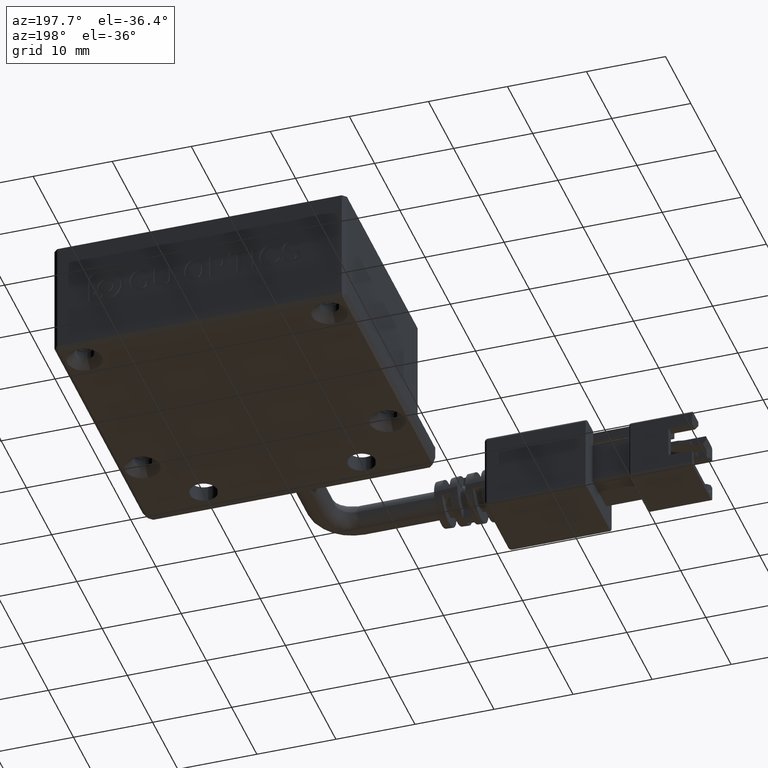
[diagram: clean part render]
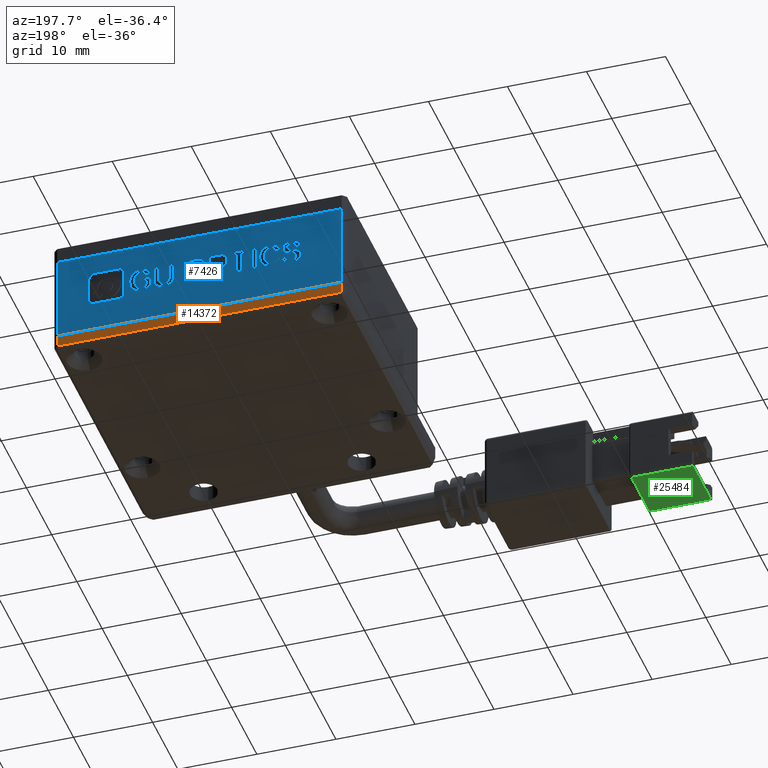
[diagram: same view with three faces highlighted in distinct colors, each labeled with its STEP entity id]
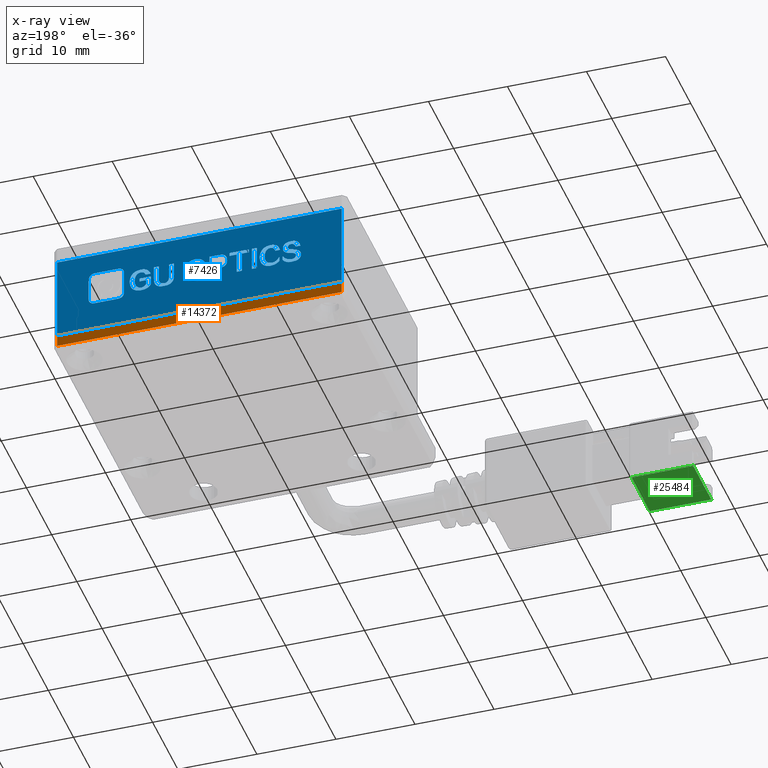
[diagram: x-ray of the same camera — body ghosted, the three highlighted faces saturated]
A machine part, auxiliary view with three faces highlighted in distinct colors.
The next image is the same camera in x-ray (body ghosted, the three faces saturated) — at least one of them is partly hidden behind the body in this view.
Their STEP definitions:

[orange] entity #14372 — the highlighted planar face has unit normal (0, -1, -0).
#2526 = DIRECTION ( 'NONE',  ( 1.110223024625158300E-016, -1.000000000000000000, -2.465190328815661900E-032 ) ) ;
#3232 = VERTEX_POINT ( 'NONE', #24449 ) ;
#4464 = LINE ( 'NONE', #23983, #7341 ) ;
#4520 = PLANE ( 'NONE',  #12842 ) ;
#5518 = DIRECTION ( 'NONE',  ( -1.368455531567204200E-047, 2.465190328815661900E-032, -1.000000000000000000 ) ) ;
#5753 = CARTESIAN_POINT ( 'NONE',  ( 18.47059946544483100, 13.94635357006494800, -1.500000000016368500 ) ) ;
#6698 = EDGE_CURVE ( 'NONE', #20626, #22993, #22823, .T. ) ;
#7341 = VECTOR ( 'NONE', #5518, 1000.000000000000000 ) ;
#7825 = VECTOR ( 'NONE', #23641, 1000.000000000000000 ) ;
#8801 = EDGE_CURVE ( 'NONE', #9730, #20626, #13312, .T. ) ;
#9287 = CARTESIAN_POINT ( 'NONE',  ( -18.02940053455516200, 13.94635357006494100, -1.500000000016368500 ) ) ;
#9730 = VERTEX_POINT ( 'NONE', #21437 ) ;
#10117 = FACE_OUTER_BOUND ( 'NONE', #26495, .T. ) ;
#10410 = EDGE_CURVE ( 'NONE', #22993, #3232, #23056, .T. ) ;
#11268 = VECTOR ( 'NONE', #25572, 1000.000000000000000 ) ;
#12842 = AXIS2_PLACEMENT_3D ( 'NONE', #14827, #2526, #16898 ) ;
#13312 = LINE ( 'NONE', #9287, #7825 ) ;
#14372 = ADVANCED_FACE ( 'NONE', ( #10117 ), #4520, .F. ) ;
#14827 = CARTESIAN_POINT ( 'NONE',  ( -18.02940053455516200, 13.94635357006494100, -2.000000000016368700 ) ) ;
#14879 = CARTESIAN_POINT ( 'NONE',  ( 18.47059946544483100, 13.94635357006494800, -1.636841703844815800E-011 ) ) ;
#15711 = CARTESIAN_POINT ( 'NONE',  ( 18.97059946544483500, 13.94635357006494800, -1.636885071931715200E-011 ) ) ;
#16898 = DIRECTION ( 'NONE',  ( -1.368455531567204200E-047, 2.465190328815661900E-032, -1.000000000000000000 ) ) ;
#17505 = ORIENTED_EDGE ( 'NONE', *, *, #8801, .F. ) ;
#17609 = VECTOR ( 'NONE', #23940, 1000.000000000000000 ) ;
#18812 = ORIENTED_EDGE ( 'NONE', *, *, #6698, .F. ) ;
#20626 = VERTEX_POINT ( 'NONE', #5753 ) ;
#21437 = CARTESIAN_POINT ( 'NONE',  ( -17.52940053455516500, 13.94635357006494100, -1.500000000016368500 ) ) ;
#21736 = ORIENTED_EDGE ( 'NONE', *, *, #25309, .F. ) ;
#22310 = ORIENTED_EDGE ( 'NONE', *, *, #10410, .F. ) ;
#22823 = LINE ( 'NONE', #23544, #11268 ) ;
#22993 = VERTEX_POINT ( 'NONE', #14879 ) ;
#23056 = LINE ( 'NONE', #15711, #17609 ) ;
#23544 = CARTESIAN_POINT ( 'NONE',  ( 18.47059946544483100, 13.94635357006494800, -2.000000000016368700 ) ) ;
#23641 = DIRECTION ( 'NONE',  ( 1.000000000000000000, 1.110223024625158300E-016, -1.094764425253762900E-047 ) ) ;
#23940 = DIRECTION ( 'NONE',  ( -1.000000000000000000, -1.110223024625158300E-016, 1.094764425253762900E-047 ) ) ;
#23983 = CARTESIAN_POINT ( 'NONE',  ( -17.52940053455516200, 13.94635357006494100, -2.000000000016368700 ) ) ;
#24449 = CARTESIAN_POINT ( 'NONE',  ( -17.52940053455516500, 13.94635357006493400, -1.636841703844815800E-011 ) ) ;
#25309 = EDGE_CURVE ( 'NONE', #3232, #9730, #4464, .T. ) ;
#25572 = DIRECTION ( 'NONE',  ( 1.368455531567204200E-047, -2.465190328815661900E-032, 1.000000000000000000 ) ) ;
#26495 = EDGE_LOOP ( 'NONE', ( #18812, #17505, #21736, #22310 ) ) ;

[blue] entity #7426 — the highlighted planar face has unit normal (0, -1, 0).
#32 = CARTESIAN_POINT ( 'NONE',  ( 2.376718738095969600, 13.94635357006495000, 6.000685109929015900 ) ) ;
#102 = CARTESIAN_POINT ( 'NONE',  ( -11.73382750311546700, 13.94635357006495000, 5.316964179696422700 ) ) ;
#206 = CARTESIAN_POINT ( 'NONE',  ( 5.604923172925491100, 13.94635357006495000, 5.126198901167552600 ) ) ;
#298 = EDGE_LOOP ( 'NONE', ( #10764, #10605, #4845, #17269 ) ) ;
#320 = VERTEX_POINT ( 'NONE', #7497 ) ;
#347 = DIRECTION ( 'NONE',  ( 1.000000000000000000, -0.0000000000000000000, 3.661440286475947500E-015 ) ) ;
#412 = CARTESIAN_POINT ( 'NONE',  ( -11.42141538845876200, 13.94635357006495000, 7.121547738376775300 ) ) ;
#424 = CARTESIAN_POINT ( 'NONE',  ( -8.518603057469105600, 13.94635357006495000, 7.130917668068493100 ) ) ;
#502 = ORIENTED_EDGE ( 'NONE', *, *, #7201, .F. ) ;
#520 = CARTESIAN_POINT ( 'NONE',  ( -10.09372474486770000, 13.94635357006495000, 6.740219993649902500 ) ) ;
#548 = FACE_BOUND ( 'NONE', #298, .T. ) ;
#593 = CARTESIAN_POINT ( 'NONE',  ( 13.67826373838532200, 13.94635357006495000, 3.843064958109941600 ) ) ;
#636 = CARTESIAN_POINT ( 'NONE',  ( 10.01990012952769500, 13.94635357006495000, 7.501469430819986100 ) ) ;
#674 = CARTESIAN_POINT ( 'NONE',  ( -4.873822094786602200, 13.94635357006495000, 7.103010691324339400 ) ) ;
#690 = VECTOR ( 'NONE', #18728, 1000.000000000000000 ) ;
#715 = LINE ( 'NONE', #18177, #21900 ) ;
#837 = CARTESIAN_POINT ( 'NONE',  ( -1.411247730265349900, 13.94635357006495000, 4.521615342487129000 ) ) ;
#855 = EDGE_LOOP ( 'NONE', ( #17032, #15774, #9594, #5757, #10791, #16305, #13598, #20223 ) ) ;
#953 = VERTEX_POINT ( 'NONE', #25631 ) ;
#1002 = VERTEX_POINT ( 'NONE', #13249 ) ;
#1045 = CARTESIAN_POINT ( 'NONE',  ( -11.14810549121715200, 13.94635357006495000, 7.563475807603381900 ) ) ;
#1055 = CARTESIAN_POINT ( 'NONE',  ( -12.29358953664717200, 13.94635357006495000, 6.628592086673147100 ) ) ;
#1067 = CARTESIAN_POINT ( 'NONE',  ( -7.776634425776476800, 13.94635357006495000, 5.986731621556889300 ) ) ;
#1107 = EDGE_CURVE ( 'NONE', #13149, #2846, #2807, .T. ) ;
#1121 = ORIENTED_EDGE ( 'NONE', *, *, #13726, .F. ) ;
#1209 = CARTESIAN_POINT ( 'NONE',  ( 9.301786342206350300, 13.94635357006495000, 6.028592086673233700 ) ) ;
#1213 = ORIENTED_EDGE ( 'NONE', *, *, #15060, .F. ) ;
#1219 = LINE ( 'NONE', #16386, #12211 ) ;
#1242 = CARTESIAN_POINT ( 'NONE',  ( -10.73152896336427500, 13.94635357006495000, 6.740219993649900800 ) ) ;
#1269 = VERTEX_POINT ( 'NONE', #18708 ) ;
#1272 = ORIENTED_EDGE ( 'NONE', *, *, #1785, .F. ) ;
#1314 = CARTESIAN_POINT ( 'NONE',  ( 1.869038911162515200, 13.94635357006495000, 7.526198901167512100 ) ) ;
#1356 = LINE ( 'NONE', #3679, #12333 ) ;
#1391 = EDGE_CURVE ( 'NONE', #7322, #21585, #5769, .T. ) ;
#1416 = ORIENTED_EDGE ( 'NONE', *, *, #13840, .F. ) ;
#1424 = EDGE_CURVE ( 'NONE', #4703, #7381, #3693, .T. ) ;
#1425 = LINE ( 'NONE', #24674, #6270 ) ;
#1454 = DIRECTION ( 'NONE',  ( 4.144061637055817500E-015, -0.0000000000000000000, -1.000000000000000000 ) ) ;
#1512 = CARTESIAN_POINT ( 'NONE',  ( -3.025390510146391600, 13.94635357006495000, 6.544871156440640500 ) ) ;
#1557 = VERTEX_POINT ( 'NONE', #2886 ) ;
#1647 = CARTESIAN_POINT ( 'NONE',  ( -11.80748894173112400, 13.94635357006495000, 7.544735948219921400 ) ) ;
#1663 = ORIENTED_EDGE ( 'NONE', *, *, #3451, .F. ) ;
#1785 = EDGE_CURVE ( 'NONE', #13893, #4284, #8482, .T. ) ;
#1808 = B_SPLINE_CURVE_WITH_KNOTS ( 'NONE', 3,
 ( #12085, #10004, #14131, #1820 ),
 .UNSPECIFIED., .F., .F.,
 ( 4, 4 ),
 ( 8.000000000000000000, 9.000000000000000000 ),
 .UNSPECIFIED. ) ;
#1820 = CARTESIAN_POINT ( 'NONE',  ( 3.704409381687255200, 13.94635357006495000, 5.819289761091809500 ) ) ;
#1831 = EDGE_CURVE ( 'NONE', #10297, #13149, #26183, .T. ) ;
#1915 = EDGE_CURVE ( 'NONE', #9042, #11006, #11674, .T. ) ;
#1926 = CARTESIAN_POINT ( 'NONE',  ( 6.633262815976093100, 13.94635357006495000, 5.135568830859249100 ) ) ;
#1989 = CARTESIAN_POINT ( 'NONE',  ( 6.255788505537982900, 13.94635357006495000, 4.879619669150248900 ) ) ;
#2019 = VERTEX_POINT ( 'NONE', #14529 ) ;
#2072 = EDGE_CURVE ( 'NONE', #13701, #25829, #14034, .T. ) ;
#2087 = VECTOR ( 'NONE', #22854, 1000.000000000000000 ) ;
#2122 = CARTESIAN_POINT ( 'NONE',  ( -10.73152896336427500, 13.94635357006495000, 6.740219993649900800 ) ) ;
#2222 = CARTESIAN_POINT ( 'NONE',  ( -8.505623068285835600, 13.94635357006495000, 4.465801388998758400 ) ) ;
#2237 = VECTOR ( 'NONE', #12195, 1000.000000000000000 ) ;
#2243 = CARTESIAN_POINT ( 'NONE',  ( -3.324822635619624700, 13.94635357006495000, 7.103010691324344700 ) ) ;
#2302 = CARTESIAN_POINT ( 'NONE',  ( -2.010030856279267500, 13.94635357006495000, 5.568126970394103200 ) ) ;
#2317 = EDGE_CURVE ( 'NONE', #1557, #11313, #9724, .T. ) ;
#2353 = EDGE_CURVE ( 'NONE', #3450, #14300, #13625, .T. ) ;
#2462 = CARTESIAN_POINT ( 'NONE',  ( 10.83557341941288300, 13.94635357006495000, 3.843064958109934100 ) ) ;
#2496 = CARTESIAN_POINT ( 'NONE',  ( -1.411247730265354300, 13.94635357006495000, 5.568126970394105000 ) ) ;
#2512 = CARTESIAN_POINT ( 'NONE',  ( -11.16108548040062900, 13.94635357006495000, 7.130917668068485100 ) ) ;
#2544 = VERTEX_POINT ( 'NONE', #15477 ) ;
#2566 = ORIENTED_EDGE ( 'NONE', *, *, #1915, .F. ) ;
#2573 = CARTESIAN_POINT ( 'NONE',  ( 8.395052972817389000, 13.94635357006495000, 7.098224320313019800 ) ) ;
#2581 = ORIENTED_EDGE ( 'NONE', *, *, #2072, .F. ) ;
#2686 = VECTOR ( 'NONE', #19273, 1000.000000000000000 ) ;
#2699 = EDGE_CURVE ( 'NONE', #8449, #11257, #1356, .T. ) ;
#2705 = EDGE_CURVE ( 'NONE', #6796, #11556, #715, .T. ) ;
#2725 = CARTESIAN_POINT ( 'NONE',  ( 8.802868007971580900, 13.94635357006495000, 7.516828971475828100 ) ) ;
#2807 = LINE ( 'NONE', #11280, #23982 ) ;
#2846 = VERTEX_POINT ( 'NONE', #18616 ) ;
#2860 = CARTESIAN_POINT ( 'NONE',  ( -4.873822094786592500, 13.94635357006495000, 4.521615342487116600 ) ) ;
#2886 = CARTESIAN_POINT ( 'NONE',  ( 7.908952377901227800, 13.94635357006495000, 7.563475807603447600 ) ) ;
#2971 = B_SPLINE_CURVE_WITH_KNOTS ( 'NONE', 3,
 ( #1209, #13566, #17695, #5378 ),
 .UNSPECIFIED., .F., .F.,
 ( 4, 4 ),
 ( 11.00000000000000000, 12.00000000000000000 ),
 .UNSPECIFIED. ) ;
#2999 = EDGE_CURVE ( 'NONE', #14300, #7626, #14514, .T. ) ;
#3095 = VECTOR ( 'NONE', #10550, 1000.000000000000000 ) ;
#3100 = CARTESIAN_POINT ( 'NONE',  ( -10.11976584816688000, 13.94635357006495000, 7.279619669150179100 ) ) ;
#3119 = LINE ( 'NONE', #15326, #8602 ) ;
#3123 = VERTEX_POINT ( 'NONE', #3385 ) ;
#3139 = B_SPLINE_CURVE_WITH_KNOTS ( 'NONE', 3,
 ( #1045, #25602, #3100, #17511 ),
 .UNSPECIFIED., .F., .F.,
 ( 4, 4 ),
 ( 5.000000000000000000, 6.000000000000000000 ),
 .UNSPECIFIED. ) ;
#3175 = ORIENTED_EDGE ( 'NONE', *, *, #16633, .F. ) ;
#3303 = DIRECTION ( 'NONE',  ( -3.108046227791703400E-015, -0.0000000000000000000, 1.000000000000000000 ) ) ;
#3381 = CARTESIAN_POINT ( 'NONE',  ( 2.376718738095969600, 13.94635357006495000, 6.000685109929015900 ) ) ;
#3383 = CARTESIAN_POINT ( 'NONE',  ( -10.73152896336427500, 13.94635357006495000, 6.740219993649900800 ) ) ;
#3385 = CARTESIAN_POINT ( 'NONE',  ( -17.52940053455517200, 13.94635357006495000, 10.99999999998363100 ) ) ;
#3392 = VERTEX_POINT ( 'NONE', #20904 ) ;
#3450 = VERTEX_POINT ( 'NONE', #674 ) ;
#3451 = EDGE_CURVE ( 'NONE', #1002, #7389, #23971, .T. ) ;
#3490 = CARTESIAN_POINT ( 'NONE',  ( 7.219065952806526600, 13.94635357006495000, 4.465801388998812600 ) ) ;
#3513 = B_SPLINE_CURVE_WITH_KNOTS ( 'NONE', 3,
 ( #21241, #6898, #15062, #8946 ),
 .UNSPECIFIED., .F., .F.,
 ( 4, 4 ),
 ( 0.0000000000000000000, 1.000000000000000000 ),
 .UNSPECIFIED. ) ;
#3514 = EDGE_CURVE ( 'NONE', #20887, #5712, #3513, .T. ) ;
#3679 = CARTESIAN_POINT ( 'NONE',  ( -6.162491645895449300, 13.94635357006495000, 7.521615342487115700 ) ) ;
#3693 = B_SPLINE_CURVE_WITH_KNOTS ( 'NONE', 3,
 ( #6624, #8157, #26576, #2122 ),
 .UNSPECIFIED., .F., .F.,
 ( 4, 4 ),
 ( 10.00000000000000000, 11.00000000000000000 ),
 .UNSPECIFIED. ) ;
#3719 = EDGE_CURVE ( 'NONE', #17268, #953, #16275, .T. ) ;
#3767 = DIRECTION ( 'NONE',  ( 1.000000000000000000, -0.0000000000000000000, 2.835237078654225800E-015 ) ) ;
#3829 = EDGE_CURVE ( 'NONE', #4284, #18243, #21966, .T. ) ;
#3847 = CARTESIAN_POINT ( 'NONE',  ( 4.311954000399853500, 13.94635357006495000, 5.107661854115047400 ) ) ;
#3850 = CARTESIAN_POINT ( 'NONE',  ( 8.377529987420139400, 13.94635357006495000, 4.916896575586158700 ) ) ;
#3867 = ORIENTED_EDGE ( 'NONE', *, *, #13797, .F. ) ;
#3898 = CARTESIAN_POINT ( 'NONE',  ( 5.604923172925482300, 13.94635357006495000, 7.521615342487155700 ) ) ;
#3920 = ORIENTED_EDGE ( 'NONE', *, *, #22794, .F. ) ;
#3939 = CARTESIAN_POINT ( 'NONE',  ( -11.22614767618202000, 13.94635357006495000, 4.465801388998748700 ) ) ;
#4041 = CARTESIAN_POINT ( 'NONE',  ( 14.49401041685039000, 13.94635357006495000, 4.658779040035254200 ) ) ;
#4053 = CARTESIAN_POINT ( 'NONE',  ( 4.980098943612508000, 13.94635357006495000, 4.465801388998809100 ) ) ;
#4058 = B_SPLINE_CURVE_WITH_KNOTS ( 'NONE', 3,
 ( #6623, #20366, #26487, #14250 ),
 .UNSPECIFIED., .F., .F.,
 ( 4, 4 ),
 ( 13.00000000000000000, 14.00000000000000000 ),
 .UNSPECIFIED. ) ;
#4174 = CARTESIAN_POINT ( 'NONE',  ( -11.20018769781528100, 13.94635357006495000, 5.777429295975501600 ) ) ;
#4204 = EDGE_CURVE ( 'NONE', #5712, #15251, #12170, .T. ) ;
#4225 = ORIENTED_EDGE ( 'NONE', *, *, #4457, .F. ) ;
#4236 = ORIENTED_EDGE ( 'NONE', *, *, #15763, .F. ) ;
#4244 = EDGE_CURVE ( 'NONE', #320, #25826, #1808, .T. ) ;
#4284 = VERTEX_POINT ( 'NONE', #12182 ) ;
#4341 = CARTESIAN_POINT ( 'NONE',  ( -0.7994846150679666400, 13.94635357006495000, 7.521615342487134400 ) ) ;
#4400 = ORIENTED_EDGE ( 'NONE', *, *, #15221, .F. ) ;
#4457 = EDGE_CURVE ( 'NONE', #16706, #17268, #22262, .T. ) ;
#4535 = EDGE_LOOP ( 'NONE', ( #3920, #8046, #19928, #4400, #15540, #10763, #4225, #13668, #11189, #23295 ) ) ;
#4652 = EDGE_CURVE ( 'NONE', #26150, #16706, #10359, .T. ) ;
#4703 = VERTEX_POINT ( 'NONE', #21531 ) ;
#4744 = CARTESIAN_POINT ( 'NONE',  ( 13.67826373838530800, 13.94635357006495000, 8.317175358458216600 ) ) ;
#4757 = FACE_OUTER_BOUND ( 'NONE', #22995, .T. ) ;
#4761 = EDGE_CURVE ( 'NONE', #22326, #6727, #14842, .T. ) ;
#4792 = CARTESIAN_POINT ( 'NONE',  ( 3.704409381687248100, 13.94635357006495000, 7.521615342487150400 ) ) ;
#4804 = CARTESIAN_POINT ( 'NONE',  ( 10.01990012952769000, 13.94635357006495000, 8.039978532337730900 ) ) ;
#4806 = CARTESIAN_POINT ( 'NONE',  ( 9.267227121005577200, 13.94635357006495000, 7.005336272719747000 ) ) ;
#4845 = ORIENTED_EDGE ( 'NONE', *, *, #25474, .F. ) ;
#4897 = ORIENTED_EDGE ( 'NONE', *, *, #1831, .F. ) ;
#4902 = LINE ( 'NONE', #12460, #15174 ) ;
#4948 = DIRECTION ( 'NONE',  ( -1.000000000000000000, -0.0000000000000000000, -2.776338359804823200E-015 ) ) ;
#5045 = LINE ( 'NONE', #1055, #14673 ) ;
#5068 = VERTEX_POINT ( 'NONE', #6847 ) ;
#5209 = CARTESIAN_POINT ( 'NONE',  ( 10.01990012952769500, 13.94635357006495000, 4.658779040035239100 ) ) ;
#5227 = CARTESIAN_POINT ( 'NONE',  ( -8.032502462552944400, 13.94635357006495000, 7.112177808685065500 ) ) ;
#5230 = EDGE_CURVE ( 'NONE', #10596, #1269, #24309, .T. ) ;
#5237 = B_SPLINE_CURVE_WITH_KNOTS ( 'NONE', 3,
 ( #4174, #8312, #12455, #102 ),
 .UNSPECIFIED., .F., .F.,
 ( 4, 4 ),
 ( 3.000000000000000000, 4.000000000000000000 ),
 .UNSPECIFIED. ) ;
#5346 = LINE ( 'NONE', #23832, #15620 ) ;
#5378 = CARTESIAN_POINT ( 'NONE',  ( 7.869850160486472600, 13.94635357006495000, 4.465801388998816200 ) ) ;
#5392 = FACE_BOUND ( 'NONE', #8368, .T. ) ;
#5404 = CARTESIAN_POINT ( 'NONE',  ( -10.72276747066547900, 13.94635357006495000, 7.000549901708282600 ) ) ;
#5534 = EDGE_CURVE ( 'NONE', #19264, #13701, #20237, .T. ) ;
#5622 = CARTESIAN_POINT ( 'NONE',  ( -7.776634425776476800, 13.94635357006495000, 5.986731621556889300 ) ) ;
#5627 = ORIENTED_EDGE ( 'NONE', *, *, #12963, .F. ) ;
#5641 = DIRECTION ( 'NONE',  ( 2.589560916236730000E-015, -0.0000000000000000000, -1.000000000000000000 ) ) ;
#5676 = B_SPLINE_CURVE_WITH_KNOTS ( 'NONE', 3,
 ( #1512, #15891, #7731, #22059 ),
 .UNSPECIFIED., .F., .F.,
 ( 4, 4 ),
 ( 5.000000000000000000, 6.000000000000000000 ),
 .UNSPECIFIED. ) ;
#5696 = CARTESIAN_POINT ( 'NONE',  ( -0.3481054912174499900, 13.94635357006495000, 6.986596413336255500 ) ) ;
#5712 = VERTEX_POINT ( 'NONE', #15247 ) ;
#5715 = LINE ( 'NONE', #10098, #11178 ) ;
#5756 = B_SPLINE_CURVE_WITH_KNOTS ( 'NONE', 3,
 ( #24470, #1989, #16354, #4053 ),
 .UNSPECIFIED., .F., .F.,
 ( 4, 4 ),
 ( 9.000000000000000000, 10.00000000000000000 ),
 .UNSPECIFIED. ) ;
#5757 = ORIENTED_EDGE ( 'NONE', *, *, #20096, .F. ) ;
#5763 = CARTESIAN_POINT ( 'NONE',  ( -0.7994846150679666400, 13.94635357006495000, 7.521615342487134400 ) ) ;
#5769 = B_SPLINE_CURVE_WITH_KNOTS ( 'NONE', 3,
 ( #12303, #8408, #16761, #24512 ),
 .UNSPECIFIED., .F., .F.,
 ( 4, 4 ),
 ( 9.000000000000000000, 10.00000000000000000 ),
 .UNSPECIFIED. ) ;
#5843 = CARTESIAN_POINT ( 'NONE',  ( -11.99845703259094900, 13.94635357006495000, 4.465801388998746900 ) ) ;
#5869 = CARTESIAN_POINT ( 'NONE',  ( 0.1161724968846613400, 13.94635357006495000, 7.507661854115046800 ) ) ;
#5891 = VERTEX_POINT ( 'NONE', #20087 ) ;
#5914 = CARTESIAN_POINT ( 'NONE',  ( 4.524501323276976600, 13.94635357006495000, 4.851712692406022300 ) ) ;
#5925 = EDGE_CURVE ( 'NONE', #2846, #10596, #19703, .T. ) ;
#5926 = CARTESIAN_POINT ( 'NONE',  ( -9.399295323558876100, 13.94635357006495000, 4.633243249463875600 ) ) ;
#5936 = B_SPLINE_CURVE_WITH_KNOTS ( 'NONE', 3,
 ( #10394, #12484, #14520, #2222 ),
 .UNSPECIFIED., .F., .F.,
 ( 4, 4 ),
 ( 7.000000000000000000, 8.000000000000000000 ),
 .UNSPECIFIED. ) ;
#6037 = VERTEX_POINT ( 'NONE', #18742 ) ;
#6060 = VERTEX_POINT ( 'NONE', #25855 ) ;
#6122 = B_SPLINE_CURVE_WITH_KNOTS ( 'NONE', 3,
 ( #10474, #12566, #206, #14606 ),
 .UNSPECIFIED., .F., .F.,
 ( 4, 4 ),
 ( 3.000000000000000000, 4.000000000000000000 ),
 .UNSPECIFIED. ) ;
#6220 = VECTOR ( 'NONE', #347, 1000.000000000000000 ) ;
#6239 = DIRECTION ( 'NONE',  ( 1.000000000000000000, -0.0000000000000000000, 3.507078338779844900E-015 ) ) ;
#6260 = CARTESIAN_POINT ( 'NONE',  ( 0.9838847737909679500, 13.94635357006495000, 4.465801388998791300 ) ) ;
#6265 = VECTOR ( 'NONE', #24871, 1000.000000000000000 ) ;
#6270 = VECTOR ( 'NONE', #10364, 1000.000000000000000 ) ;
#6429 = ORIENTED_EDGE ( 'NONE', *, *, #25073, .F. ) ;
#6442 = ORIENTED_EDGE ( 'NONE', *, *, #5925, .F. ) ;
#6460 = CARTESIAN_POINT ( 'NONE',  ( 7.219065952806524900, 13.94635357006495000, 5.330917668068592800 ) ) ;
#6587 = CARTESIAN_POINT ( 'NONE',  ( -8.648808573964661400, 13.94635357006495000, 4.870452551789433000 ) ) ;
#6623 = CARTESIAN_POINT ( 'NONE',  ( 6.646323930091674500, 13.94635357006495000, 6.684406040161602100 ) ) ;
#6624 = CARTESIAN_POINT ( 'NONE',  ( -11.22614767618202200, 13.94635357006495000, 6.307661854115015600 ) ) ;
#6661 = CARTESIAN_POINT ( 'NONE',  ( -11.59924124027068100, 13.94635357006495000, 6.954105877911655600 ) ) ;
#6670 = CARTESIAN_POINT ( 'NONE',  ( 7.219065952806524900, 13.94635357006495000, 5.330917668068592800 ) ) ;
#6675 = ORIENTED_EDGE ( 'NONE', *, *, #23797, .F. ) ;
#6676 = VECTOR ( 'NONE', #7857, 1000.000000000000000 ) ;
#6727 = VERTEX_POINT ( 'NONE', #11348 ) ;
#6796 = VERTEX_POINT ( 'NONE', #11511 ) ;
#6799 = CARTESIAN_POINT ( 'NONE',  ( 14.49401041685037600, 13.94635357006495000, 7.876697093076839600 ) ) ;
#6847 = CARTESIAN_POINT ( 'NONE',  ( -4.248997865473722200, 13.94635357006495000, 4.521615342487118400 ) ) ;
#6898 = CARTESIAN_POINT ( 'NONE',  ( 0.09873063641941022500, 13.94635357006495000, 4.521615342487133500 ) ) ;
#6900 = CARTESIAN_POINT ( 'NONE',  ( 6.229747402238907700, 13.94635357006495000, 7.521615342487159200 ) ) ;
#7033 = DIRECTION ( 'NONE',  ( -6.064480444471515500E-015, -0.0000000000000000000, 1.000000000000000000 ) ) ;
#7035 = CARTESIAN_POINT ( 'NONE',  ( -2.704216902790991900, 13.94635357006495000, 5.549387111010670300 ) ) ;
#7120 = CARTESIAN_POINT ( 'NONE',  ( -3.042670120746551600, 13.94635357006495000, 5.875103714580132100 ) ) ;
#7156 = DIRECTION ( 'NONE',  ( 3.696054973590201900E-015, -0.0000000000000000000, -1.000000000000000000 ) ) ;
#7170 = EDGE_CURVE ( 'NONE', #24637, #12920, #26251, .T. ) ;
#7194 = CARTESIAN_POINT ( 'NONE',  ( -11.73382750311546700, 13.94635357006495000, 5.316964179696422700 ) ) ;
#7201 = EDGE_CURVE ( 'NONE', #7746, #15308, #13858, .T. ) ;
#7239 = ORIENTED_EDGE ( 'NONE', *, *, #19883, .F. ) ;
#7322 = VERTEX_POINT ( 'NONE', #13401 ) ;
#7380 = CARTESIAN_POINT ( 'NONE',  ( -18.02940053455517200, 13.94635357006495000, -1.636971808105514000E-011 ) ) ;
#7381 = VERTEX_POINT ( 'NONE', #3383 ) ;
#7387 = CARTESIAN_POINT ( 'NONE',  ( -6.774335886025171200, 13.94635357006495000, 7.521615342487113900 ) ) ;
#7389 = VERTEX_POINT ( 'NONE', #17793 ) ;
#7426 = ADVANCED_FACE ( 'NONE', ( #548, #10853, #23690, #5392, #21738, #26540, #21137, #15674, #10211, #4757 ), #21958, .F. ) ;
#7473 = CARTESIAN_POINT ( 'NONE',  ( -10.86595297634430100, 13.94635357006495000, 7.130917668068485100 ) ) ;
#7497 = CARTESIAN_POINT ( 'NONE',  ( 4.980098943612508000, 13.94635357006495000, 4.465801388998809100 ) ) ;
#7626 = VERTEX_POINT ( 'NONE', #21441 ) ;
#7634 = CARTESIAN_POINT ( 'NONE',  ( -11.98969553989193500, 13.94635357006495000, 6.149387111010629100 ) ) ;
#7671 = EDGE_CURVE ( 'NONE', #13471, #18704, #5045, .T. ) ;
#7731 = CARTESIAN_POINT ( 'NONE',  ( -2.695536535024420900, 13.94635357006495000, 7.521615342487128200 ) ) ;
#7746 = VERTEX_POINT ( 'NONE', #19747 ) ;
#7823 = CARTESIAN_POINT ( 'NONE',  ( -11.22614767618202000, 13.94635357006495000, 4.465801388998748700 ) ) ;
#7830 = B_SPLINE_CURVE_WITH_KNOTS ( 'NONE', 3,
 ( #13645, #1314, #15706, #3381 ),
 .UNSPECIFIED., .F., .F.,
 ( 4, 4 ),
 ( 2.000000000000000000, 3.000000000000000000 ),
 .UNSPECIFIED. ) ;
#7841 = LINE ( 'NONE', #17841, #23567 ) ;
#7857 = DIRECTION ( 'NONE',  ( -3.696054973590205000E-015, -0.0000000000000000000, 1.000000000000000000 ) ) ;
#7870 = LINE ( 'NONE', #23479, #22956 ) ;
#7890 = CARTESIAN_POINT ( 'NONE',  ( -4.248997865473731900, 13.94635357006495000, 7.103010691324342900 ) ) ;
#7920 = DIRECTION ( 'NONE',  ( -1.000000000000000000, -0.0000000000000000000, -2.835613054927432900E-015 ) ) ;
#7932 = ORIENTED_EDGE ( 'NONE', *, *, #1107, .F. ) ;
#7955 = CARTESIAN_POINT ( 'NONE',  ( 7.856870171303098600, 13.94635357006495000, 4.870452551789491700 ) ) ;
#8039 = ORIENTED_EDGE ( 'NONE', *, *, #5230, .F. ) ;
#8046 = ORIENTED_EDGE ( 'NONE', *, *, #1391, .F. ) ;
#8052 = CARTESIAN_POINT ( 'NONE',  ( -10.72276747066547400, 13.94635357006495000, 4.437894412254556700 ) ) ;
#8058 = VERTEX_POINT ( 'NONE', #6900 ) ;
#8154 = CARTESIAN_POINT ( 'NONE',  ( 9.301786342206350300, 13.94635357006495000, 6.028592086673233700 ) ) ;
#8157 = CARTESIAN_POINT ( 'NONE',  ( -10.87901409046011000, 13.94635357006495000, 6.363475807603375500 ) ) ;
#8197 = VERTEX_POINT ( 'NONE', #11539 ) ;
#8207 = B_SPLINE_CURVE_WITH_KNOTS ( 'NONE', 3,
 ( #32, #12393, #18574, #6260 ),
 .UNSPECIFIED., .F., .F.,
 ( 4, 4 ),
 ( 1.000000000000000000, 2.000000000000000000 ),
 .UNSPECIFIED. ) ;
#8211 = LINE ( 'NONE', #10555, #2087 ) ;
#8217 = CARTESIAN_POINT ( 'NONE',  ( 8.052137883579943500, 13.94635357006495000, 6.251847900626722200 ) ) ;
#8240 = VECTOR ( 'NONE', #5641, 1000.000000000000000 ) ;
#8251 = CARTESIAN_POINT ( 'NONE',  ( -7.182150921179359500, 13.94635357006495000, 6.991382784347600000 ) ) ;
#8312 = CARTESIAN_POINT ( 'NONE',  ( -11.55592052637144600, 13.94635357006495000, 5.712245412795392800 ) ) ;
#8332 = CARTESIAN_POINT ( 'NONE',  ( 10.01990012952769500, 13.94635357006495000, 7.501469430819986100 ) ) ;
#8368 = EDGE_LOOP ( 'NONE', ( #3175, #10176, #22853, #6429, #2566, #23943, #23656, #20675 ) ) ;
#8408 = CARTESIAN_POINT ( 'NONE',  ( -9.577283425235567200, 13.94635357006495000, 7.223805715661793400 ) ) ;
#8441 = VECTOR ( 'NONE', #10006, 1000.000000000000000 ) ;
#8449 = VERTEX_POINT ( 'NONE', #14495 ) ;
#8482 = LINE ( 'NONE', #14657, #24185 ) ;
#8558 = CARTESIAN_POINT ( 'NONE',  ( 3.704409381687248100, 13.94635357006495000, 7.521615342487150400 ) ) ;
#8602 = VECTOR ( 'NONE', #17403, 1000.000000000000000 ) ;
#8618 = ORIENTED_EDGE ( 'NONE', *, *, #24104, .F. ) ;
#8752 = VERTEX_POINT ( 'NONE', #21486 ) ;
#8810 = CARTESIAN_POINT ( 'NONE',  ( -10.02858142415408500, 13.94635357006495000, 5.554173482021999700 ) ) ;
#8946 = CARTESIAN_POINT ( 'NONE',  ( -0.4089491905140442100, 13.94635357006495000, 6.000685109929005300 ) ) ;
#8999 = EDGE_CURVE ( 'NONE', #16684, #7322, #9086, .T. ) ;
#9042 = VERTEX_POINT ( 'NONE', #24238 ) ;
#9044 = CARTESIAN_POINT ( 'NONE',  ( 7.908952377901227800, 13.94635357006495000, 7.144871156440668600 ) ) ;
#9072 = VECTOR ( 'NONE', #25111, 1000.000000000000000 ) ;
#9086 = LINE ( 'NONE', #24319, #8441 ) ;
#9119 = EDGE_CURVE ( 'NONE', #6060, #18992, #16455, .T. ) ;
#9156 = VERTEX_POINT ( 'NONE', #8558 ) ;
#9180 = B_SPLINE_CURVE_WITH_KNOTS ( 'NONE', 3,
 ( #636, #4804, #23290, #10985 ),
 .UNSPECIFIED., .F., .F.,
 ( 4, 4 ),
 ( 3.000000000000000000, 4.000000000000000000 ),
 .UNSPECIFIED. ) ;
#9181 = AXIS2_PLACEMENT_3D ( 'NONE', #22046, #9782, #24109 ) ;
#9223 = ORIENTED_EDGE ( 'NONE', *, *, #11248, .F. ) ;
#9344 = EDGE_CURVE ( 'NONE', #5891, #8197, #20596, .T. ) ;
#9477 = VERTEX_POINT ( 'NONE', #21971 ) ;
#9594 = ORIENTED_EDGE ( 'NONE', *, *, #2353, .F. ) ;
#9595 = CARTESIAN_POINT ( 'NONE',  ( -12.37171284654426100, 13.94635357006495000, 5.833243249463843800 ) ) ;
#9607 = CARTESIAN_POINT ( 'NONE',  ( 3.704409381687255200, 13.94635357006495000, 5.819289761091809500 ) ) ;
#9623 = CARTESIAN_POINT ( 'NONE',  ( 10.83557341941288300, 13.94635357006495000, 3.843064958109934100 ) ) ;
#9724 = B_SPLINE_CURVE_WITH_KNOTS ( 'NONE', 3,
 ( #17109, #2725, #4806, #19185 ),
 .UNSPECIFIED., .F., .F.,
 ( 4, 4 ),
 ( 12.00000000000000000, 13.00000000000000000 ),
 .UNSPECIFIED. ) ;
#9782 = DIRECTION ( 'NONE',  ( 0.0000000000000000000, -1.000000000000000000, 0.0000000000000000000 ) ) ;
#10004 = CARTESIAN_POINT ( 'NONE',  ( 4.086426688339249000, 13.94635357006495000, 4.419357365202151800 ) ) ;
#10006 = DIRECTION ( 'NONE',  ( -1.000000000000000000, -0.0000000000000000000, -2.835237078654739800E-015 ) ) ;
#10029 = ORIENTED_EDGE ( 'NONE', *, *, #25428, .F. ) ;
#10063 = CARTESIAN_POINT ( 'NONE',  ( -9.651107113715863100, 13.94635357006495000, 4.968126970394072500 ) ) ;
#10098 = CARTESIAN_POINT ( 'NONE',  ( 18.47059946544482000, 13.94635357006495000, 10.99999999998363100 ) ) ;
#10176 = ORIENTED_EDGE ( 'NONE', *, *, #17357, .F. ) ;
#10211 = FACE_BOUND ( 'NONE', #21762, .T. ) ;
#10247 = B_SPLINE_CURVE_WITH_KNOTS ( 'NONE', 3,
 ( #17525, #15449, #25538, #5209 ),
 .UNSPECIFIED., .F., .F.,
 ( 4, 4 ),
 ( 5.000000000000000000, 6.000000000000000000 ),
 .UNSPECIFIED. ) ;
#10284 = ORIENTED_EDGE ( 'NONE', *, *, #15419, .F. ) ;
#10297 = VERTEX_POINT ( 'NONE', #23600 ) ;
#10359 = LINE ( 'NONE', #19352, #25409 ) ;
#10364 = DIRECTION ( 'NONE',  ( 3.758567531283077000E-015, -0.0000000000000000000, -1.000000000000000000 ) ) ;
#10394 = CARTESIAN_POINT ( 'NONE',  ( -7.138830207279792000, 13.94635357006495000, 6.014638598301086600 ) ) ;
#10396 = LINE ( 'NONE', #24562, #16505 ) ;
#10419 = CARTESIAN_POINT ( 'NONE',  ( -11.14810549121715200, 13.94635357006495000, 7.563475807603381900 ) ) ;
#10423 = EDGE_CURVE ( 'NONE', #1269, #4703, #16452, .T. ) ;
#10474 = CARTESIAN_POINT ( 'NONE',  ( 4.967118954429030200, 13.94635357006495000, 4.870452551789481000 ) ) ;
#10550 = DIRECTION ( 'NONE',  ( -1.000000000000000000, -0.0000000000000000000, -2.897081431677651400E-015 ) ) ;
#10555 = CARTESIAN_POINT ( 'NONE',  ( -18.02940053455517200, 13.94635357006495000, 10.99999999998363100 ) ) ;
#10568 = EDGE_CURVE ( 'NONE', #12920, #23432, #14387, .T. ) ;
#10573 = CARTESIAN_POINT ( 'NONE',  ( 7.856870171303098600, 13.94635357006495000, 4.870452551789491700 ) ) ;
#10596 = VERTEX_POINT ( 'NONE', #3939 ) ;
#10605 = ORIENTED_EDGE ( 'NONE', *, *, #20458, .F. ) ;
#10661 = CARTESIAN_POINT ( 'NONE',  ( 2.376718738095969600, 13.94635357006495000, 6.000685109929015900 ) ) ;
#10763 = ORIENTED_EDGE ( 'NONE', *, *, #3719, .F. ) ;
#10764 = ORIENTED_EDGE ( 'NONE', *, *, #2699, .F. ) ;
#10790 = VERTEX_POINT ( 'NONE', #10661 ) ;
#10791 = ORIENTED_EDGE ( 'NONE', *, *, #22396, .F. ) ;
#10798 = CARTESIAN_POINT ( 'NONE',  ( -11.13504437710144400, 13.94635357006495000, 4.856499063417335700 ) ) ;
#10819 = VERTEX_POINT ( 'NONE', #2496 ) ;
#10833 = VERTEX_POINT ( 'NONE', #22871 ) ;
#10853 = FACE_BOUND ( 'NONE', #4535, .T. ) ;
#10949 = CARTESIAN_POINT ( 'NONE',  ( -8.505623068285835600, 13.94635357006495000, 4.465801388998758400 ) ) ;
#10975 = DIRECTION ( 'NONE',  ( -4.076126200382680500E-015, -0.0000000000000000000, 1.000000000000000000 ) ) ;
#10985 = CARTESIAN_POINT ( 'NONE',  ( 10.83557341941287100, 13.94635357006495000, 8.317175358458206000 ) ) ;
#11006 = VERTEX_POINT ( 'NONE', #21844 ) ;
#11106 = CARTESIAN_POINT ( 'NONE',  ( 7.392754433066188300, 13.94635357006495000, 6.991382784347650600 ) ) ;
#11178 = VECTOR ( 'NONE', #22371, 1000.000000000000000 ) ;
#11189 = ORIENTED_EDGE ( 'NONE', *, *, #12259, .F. ) ;
#11203 = EDGE_CURVE ( 'NONE', #10790, #20887, #8207, .T. ) ;
#11248 = EDGE_CURVE ( 'NONE', #23432, #23060, #6122, .T. ) ;
#11250 = B_SPLINE_CURVE_WITH_KNOTS ( 'NONE', 3,
 ( #7194, #13397, #23678, #11393 ),
 .UNSPECIFIED., .F., .F.,
 ( 4, 4 ),
 ( 2.000000000000000000, 3.000000000000000000 ),
 .UNSPECIFIED. ) ;
#11252 = VERTEX_POINT ( 'NONE', #16660 ) ;
#11257 = VERTEX_POINT ( 'NONE', #22758 ) ;
#11280 = CARTESIAN_POINT ( 'NONE',  ( -10.02858142415408200, 13.94635357006495000, 5.023940923882459100 ) ) ;
#11290 = ORIENTED_EDGE ( 'NONE', *, *, #7671, .F. ) ;
#11293 = EDGE_CURVE ( 'NONE', #20739, #1557, #4058, .T. ) ;
#11313 = VERTEX_POINT ( 'NONE', #8154 ) ;
#11348 = CARTESIAN_POINT ( 'NONE',  ( 18.47059946544482800, 13.94635357006495400, -1.637101912366212300E-011 ) ) ;
#11393 = CARTESIAN_POINT ( 'NONE',  ( -11.13504437710144400, 13.94635357006495000, 4.856499063417335700 ) ) ;
#11417 = B_SPLINE_CURVE_WITH_KNOTS ( 'NONE', 3,
 ( #14343, #16410, #8251, #22585 ),
 .UNSPECIFIED., .F., .F.,
 ( 4, 4 ),
 ( 8.000000000000000000, 9.000000000000000000 ),
 .UNSPECIFIED. ) ;
#11430 = EDGE_CURVE ( 'NONE', #10819, #5891, #19533, .T. ) ;
#11493 = DIRECTION ( 'NONE',  ( 1.000000000000000000, 0.0000000000000000000, 0.0000000000000000000 ) ) ;
#11511 = CARTESIAN_POINT ( 'NONE',  ( -0.7994846150679554300, 13.94635357006495000, 4.521615342487129900 ) ) ;
#11521 = ORIENTED_EDGE ( 'NONE', *, *, #10568, .F. ) ;
#11539 = CARTESIAN_POINT ( 'NONE',  ( -3.025390510146391600, 13.94635357006495000, 6.544871156440640500 ) ) ;
#11556 = VERTEX_POINT ( 'NONE', #837 ) ;
#11596 = B_SPLINE_CURVE_WITH_KNOTS ( 'NONE', 3,
 ( #26196, #24161, #1647, #16018 ),
 .UNSPECIFIED., .F., .F.,
 ( 4, 4 ),
 ( 6.000000000000000000, 7.000000000000000000 ),
 .UNSPECIFIED. ) ;
#11674 = LINE ( 'NONE', #25554, #6220 ) ;
#11778 = CARTESIAN_POINT ( 'NONE',  ( -7.138830207279792000, 13.94635357006495000, 6.014638598301086600 ) ) ;
#11845 = ORIENTED_EDGE ( 'NONE', *, *, #4761, .F. ) ;
#11897 = ORIENTED_EDGE ( 'NONE', *, *, #16122, .F. ) ;
#11989 = CARTESIAN_POINT ( 'NONE',  ( -0.4089491905140442100, 13.94635357006495000, 6.000685109929005300 ) ) ;
#12085 = CARTESIAN_POINT ( 'NONE',  ( 4.980098943612508000, 13.94635357006495000, 4.465801388998809100 ) ) ;
#12096 = CARTESIAN_POINT ( 'NONE',  ( -4.873822094786602200, 13.94635357006495000, 7.103010691324339400 ) ) ;
#12141 = CARTESIAN_POINT ( 'NONE',  ( 4.329233611000236500, 13.94635357006495000, 5.637894412254628800 ) ) ;
#12151 = CARTESIAN_POINT ( 'NONE',  ( 18.47059946544482000, 13.94635357006495400, 10.99999999998363100 ) ) ;
#12170 = B_SPLINE_CURVE_WITH_KNOTS ( 'NONE', 3,
 ( #11989, #5696, #5869, #20247 ),
 .UNSPECIFIED., .F., .F.,
 ( 4, 4 ),
 ( 3.000000000000000000, 4.000000000000000000 ),
 .UNSPECIFIED. ) ;
#12180 = EDGE_CURVE ( 'NONE', #10833, #13893, #22453, .T. ) ;
#12182 = CARTESIAN_POINT ( 'NONE',  ( 6.633262815976089600, 13.94635357006495000, 6.251847900626718700 ) ) ;
#12195 = DIRECTION ( 'NONE',  ( 1.000000000000000000, -0.0000000000000000000, 5.552676719604713600E-015 ) ) ;
#12211 = VECTOR ( 'NONE', #14405, 1000.000000000000000 ) ;
#12259 = EDGE_CURVE ( 'NONE', #21053, #26150, #21552, .T. ) ;
#12268 = VERTEX_POINT ( 'NONE', #12151 ) ;
#12303 = CARTESIAN_POINT ( 'NONE',  ( -9.716250434429591500, 13.94635357006495000, 6.572778133184812100 ) ) ;
#12333 = VECTOR ( 'NONE', #3767, 1000.000000000000000 ) ;
#12393 = CARTESIAN_POINT ( 'NONE',  ( 2.333398024196520200, 13.94635357006495000, 5.033108041243265200 ) ) ;
#12411 = ORIENTED_EDGE ( 'NONE', *, *, #7170, .F. ) ;
#12433 = VECTOR ( 'NONE', #20959, 1000.000000000000000 ) ;
#12455 = CARTESIAN_POINT ( 'NONE',  ( -11.73382750311547100, 13.94635357006495000, 5.558757040702361400 ) ) ;
#12460 = CARTESIAN_POINT ( 'NONE',  ( 7.219065952806524900, 13.94635357006495000, 5.330917668068592800 ) ) ;
#12484 = CARTESIAN_POINT ( 'NONE',  ( -7.182150921179352400, 13.94635357006495000, 5.028524482562838600 ) ) ;
#12566 = CARTESIAN_POINT ( 'NONE',  ( 5.392375850048371600, 13.94635357006495000, 4.870452551789482800 ) ) ;
#12741 = LINE ( 'NONE', #7387, #23620 ) ;
#12815 = ORIENTED_EDGE ( 'NONE', *, *, #20534, .F. ) ;
#12837 = CARTESIAN_POINT ( 'NONE',  ( 8.676962112893368900, 13.94635357006495000, 6.014638598301140800 ) ) ;
#12880 = CARTESIAN_POINT ( 'NONE',  ( -10.40159386331008000, 13.94635357006495000, 5.916964179696431200 ) ) ;
#12881 = VERTEX_POINT ( 'NONE', #10419 ) ;
#12920 = VERTEX_POINT ( 'NONE', #20831 ) ;
#12963 = EDGE_CURVE ( 'NONE', #9477, #13471, #25659, .T. ) ;
#13012 = CARTESIAN_POINT ( 'NONE',  ( 6.229747402238914800, 13.94635357006495000, 5.791382784347652200 ) ) ;
#13102 = CARTESIAN_POINT ( 'NONE',  ( 5.604923172925489400, 13.94635357006495000, 5.637894412254634200 ) ) ;
#13143 = CARTESIAN_POINT ( 'NONE',  ( -5.797997324640600200, 13.94635357006495000, 7.521615342487115700 ) ) ;
#13149 = VERTEX_POINT ( 'NONE', #13305 ) ;
#13166 = EDGE_CURVE ( 'NONE', #12881, #7746, #3139, .T. ) ;
#13191 = DIRECTION ( 'NONE',  ( 6.543255216403682400E-015, -0.0000000000000000000, -1.000000000000000000 ) ) ;
#13249 = CARTESIAN_POINT ( 'NONE',  ( 7.908952377901227800, 13.94635357006495000, 7.144871156440668600 ) ) ;
#13305 = CARTESIAN_POINT ( 'NONE',  ( -10.02858142415408500, 13.94635357006495000, 5.554173482021999700 ) ) ;
#13360 = VERTEX_POINT ( 'NONE', #18763 ) ;
#13397 = CARTESIAN_POINT ( 'NONE',  ( -11.72506601041678600, 13.94635357006495000, 5.009987435510348400 ) ) ;
#13401 = CARTESIAN_POINT ( 'NONE',  ( -9.716250434429591500, 13.94635357006495000, 6.572778133184812100 ) ) ;
#13452 = VECTOR ( 'NONE', #26303, 1000.000000000000000 ) ;
#13470 = CARTESIAN_POINT ( 'NONE',  ( 5.604923172925482300, 13.94635357006495000, 7.521615342487155700 ) ) ;
#13471 = VERTEX_POINT ( 'NONE', #25334 ) ;
#13566 = CARTESIAN_POINT ( 'NONE',  ( 9.267227121005582500, 13.94635357006495000, 5.023940923882525700 ) ) ;
#13598 = ORIENTED_EDGE ( 'NONE', *, *, #18351, .F. ) ;
#13625 = LINE ( 'NONE', #17203, #2686 ) ;
#13645 = CARTESIAN_POINT ( 'NONE',  ( 0.9838847737909575100, 13.94635357006495000, 7.563475807603423600 ) ) ;
#13668 = ORIENTED_EDGE ( 'NONE', *, *, #4652, .F. ) ;
#13701 = VERTEX_POINT ( 'NONE', #7955 ) ;
#13726 = EDGE_CURVE ( 'NONE', #15426, #8058, #17996, .T. ) ;
#13754 = LINE ( 'NONE', #20611, #19234 ) ;
#13790 = CARTESIAN_POINT ( 'NONE',  ( -8.084584669151183800, 13.94635357006495000, 4.907526645894366300 ) ) ;
#13797 = EDGE_CURVE ( 'NONE', #9156, #24637, #1219, .T. ) ;
#13836 = CARTESIAN_POINT ( 'NONE',  ( 6.633262815976093100, 13.94635357006495000, 5.135568830859249100 ) ) ;
#13840 = EDGE_CURVE ( 'NONE', #18704, #12881, #11596, .T. ) ;
#13858 = B_SPLINE_CURVE_WITH_KNOTS ( 'NONE', 3,
 ( #520, #25101, #12880, #14924 ),
 .UNSPECIFIED., .F., .F.,
 ( 4, 4 ),
 ( 4.000000000000000000, 5.000000000000000000 ),
 .UNSPECIFIED. ) ;
#13893 = VERTEX_POINT ( 'NONE', #1926 ) ;
#13926 = CARTESIAN_POINT ( 'NONE',  ( -12.29358953664717200, 13.94635357006495000, 6.628592086673147100 ) ) ;
#13936 = ORIENTED_EDGE ( 'NONE', *, *, #11430, .F. ) ;
#13963 = ORIENTED_EDGE ( 'NONE', *, *, #1424, .F. ) ;
#13974 = EDGE_CURVE ( 'NONE', #18992, #6796, #1425, .T. ) ;
#14034 = B_SPLINE_CURVE_WITH_KNOTS ( 'NONE', 3,
 ( #18456, #3850, #18252, #17802 ),
 .UNSPECIFIED., .F., .F.,
 ( 4, 4 ),
 ( 3.000000000000000000, 4.000000000000000000 ),
 .UNSPECIFIED. ) ;
#14101 = CARTESIAN_POINT ( 'NONE',  ( -12.37171284654426100, 13.94635357006495000, 5.358824644812690600 ) ) ;
#14108 = ORIENTED_EDGE ( 'NONE', *, *, #14660, .F. ) ;
#14131 = CARTESIAN_POINT ( 'NONE',  ( 3.661088667787579400, 13.94635357006495000, 4.870452551789475700 ) ) ;
#14150 = CARTESIAN_POINT ( 'NONE',  ( -10.32355167834542100, 13.94635357006495000, 4.624076132103107600 ) ) ;
#14178 = CARTESIAN_POINT ( 'NONE',  ( 4.967118954429030200, 13.94635357006495000, 4.870452551789481000 ) ) ;
#14250 = CARTESIAN_POINT ( 'NONE',  ( 7.908952377901227800, 13.94635357006495000, 7.563475807603447600 ) ) ;
#14251 = ORIENTED_EDGE ( 'NONE', *, *, #21705, .F. ) ;
#14300 = VERTEX_POINT ( 'NONE', #16544 ) ;
#14317 = CARTESIAN_POINT ( 'NONE',  ( 4.967118954429030200, 13.94635357006495000, 4.870452551789481000 ) ) ;
#14343 = CARTESIAN_POINT ( 'NONE',  ( -8.479581964986669700, 13.94635357006495000, 7.563475807603390800 ) ) ;
#14387 = B_SPLINE_CURVE_WITH_KNOTS ( 'NONE', 3,
 ( #12141, #3847, #5914, #14178 ),
 .UNSPECIFIED., .F., .F.,
 ( 4, 4 ),
 ( 4.000000000000000000, 5.000000000000000000 ),
 .UNSPECIFIED. ) ;
#14405 = DIRECTION ( 'NONE',  ( 1.000000000000000000, -0.0000000000000000000, 2.776338359804330100E-015 ) ) ;
#14462 = CARTESIAN_POINT ( 'NONE',  ( -8.648808573964661400, 13.94635357006495000, 4.870452551789433000 ) ) ;
#14495 = CARTESIAN_POINT ( 'NONE',  ( -6.774335886025171200, 13.94635357006495000, 7.521615342487113900 ) ) ;
#14496 = DIRECTION ( 'NONE',  ( 3.453384697546628800E-015, -0.0000000000000000000, -1.000000000000000000 ) ) ;
#14514 = LINE ( 'NONE', #13143, #24748 ) ;
#14520 = CARTESIAN_POINT ( 'NONE',  ( -7.637748541514663500, 13.94635357006495000, 4.512448225126410900 ) ) ;
#14529 = CARTESIAN_POINT ( 'NONE',  ( 8.052137883579943500, 13.94635357006495000, 5.833243249463914800 ) ) ;
#14606 = CARTESIAN_POINT ( 'NONE',  ( 5.604923172925489400, 13.94635357006495000, 5.637894412254634200 ) ) ;
#14634 = CARTESIAN_POINT ( 'NONE',  ( 0.9838847737909679500, 13.94635357006495000, 4.465801388998791300 ) ) ;
#14650 = ORIENTED_EDGE ( 'NONE', *, *, #9344, .F. ) ;
#14657 = CARTESIAN_POINT ( 'NONE',  ( 6.633262815976089600, 13.94635357006495000, 6.251847900626718700 ) ) ;
#14660 = EDGE_CURVE ( 'NONE', #15251, #10790, #7830, .T. ) ;
#14673 = VECTOR ( 'NONE', #19585, 1000.000000000000000 ) ;
#14825 = CARTESIAN_POINT ( 'NONE',  ( -9.104406194299981400, 13.94635357006495000, 6.572778133184813900 ) ) ;
#14842 = LINE ( 'NONE', #7380, #25071 ) ;
#14901 = CARTESIAN_POINT ( 'NONE',  ( -9.651107113715863100, 13.94635357006495000, 4.968126970394072500 ) ) ;
#14924 = CARTESIAN_POINT ( 'NONE',  ( -11.20018769781528100, 13.94635357006495000, 5.777429295975501600 ) ) ;
#14945 = CARTESIAN_POINT ( 'NONE',  ( -9.104406194299981400, 13.94635357006495000, 6.572778133184813900 ) ) ;
#15056 = DIRECTION ( 'NONE',  ( 4.010382229408812500E-015, -0.0000000000000000000, -1.000000000000000000 ) ) ;
#15060 = EDGE_CURVE ( 'NONE', #19566, #320, #5756, .T. ) ;
#15062 = CARTESIAN_POINT ( 'NONE',  ( -0.3653851018174947300, 13.94635357006495000, 5.033108041243257200 ) ) ;
#15174 = VECTOR ( 'NONE', #14496, 1000.000000000000000 ) ;
#15193 = DIRECTION ( 'NONE',  ( -4.144061637055817500E-015, -0.0000000000000000000, 1.000000000000000000 ) ) ;
#15221 = EDGE_CURVE ( 'NONE', #26082, #16684, #23787, .T. ) ;
#15247 = CARTESIAN_POINT ( 'NONE',  ( -0.4089491905140442100, 13.94635357006495000, 6.000685109929005300 ) ) ;
#15251 = VERTEX_POINT ( 'NONE', #25095 ) ;
#15286 = CARTESIAN_POINT ( 'NONE',  ( -2.010030856279267500, 13.94635357006495000, 5.568126970394103200 ) ) ;
#15300 = LINE ( 'NONE', #19446, #25520 ) ;
#15308 = VERTEX_POINT ( 'NONE', #17079 ) ;
#15326 = CARTESIAN_POINT ( 'NONE',  ( -17.52940053455517200, 13.94635357006495000, 10.99999999998363100 ) ) ;
#15338 = ORIENTED_EDGE ( 'NONE', *, *, #17515, .F. ) ;
#15356 = VECTOR ( 'NONE', #24490, 1000.000000000000000 ) ;
#15396 = VECTOR ( 'NONE', #21024, 1000.000000000000000 ) ;
#15417 = EDGE_CURVE ( 'NONE', #18863, #25477, #10247, .T. ) ;
#15419 = EDGE_CURVE ( 'NONE', #6037, #10297, #11250, .T. ) ;
#15426 = VERTEX_POINT ( 'NONE', #13470 ) ;
#15449 = CARTESIAN_POINT ( 'NONE',  ( 10.29726003437759000, 13.94635357006495000, 3.843064958109932300 ) ) ;
#15477 = CARTESIAN_POINT ( 'NONE',  ( 14.49401041685038300, 13.94635357006495000, 7.338342923008569900 ) ) ;
#15540 = ORIENTED_EDGE ( 'NONE', *, *, #24151, .F. ) ;
#15620 = VECTOR ( 'NONE', #25863, 1000.000000000000000 ) ;
#15674 = FACE_BOUND ( 'NONE', #20050, .T. ) ;
#15683 = EDGE_CURVE ( 'NONE', #17021, #21053, #5936, .T. ) ;
#15702 = ORIENTED_EDGE ( 'NONE', *, *, #2317, .F. ) ;
#15706 = CARTESIAN_POINT ( 'NONE',  ( 2.333398024196513100, 13.94635357006495000, 7.005336272719723000 ) ) ;
#15763 = EDGE_CURVE ( 'NONE', #8058, #19566, #21798, .T. ) ;
#15774 = ORIENTED_EDGE ( 'NONE', *, *, #2999, .F. ) ;
#15795 = CARTESIAN_POINT ( 'NONE',  ( -12.37171284654426100, 13.94635357006495000, 5.358824644812690600 ) ) ;
#15852 = CARTESIAN_POINT ( 'NONE',  ( -8.648808573964661400, 13.94635357006495000, 4.870452551789433000 ) ) ;
#15870 = CARTESIAN_POINT ( 'NONE',  ( 4.329233611000229400, 13.94635357006495000, 7.521615342487152100 ) ) ;
#15891 = CARTESIAN_POINT ( 'NONE',  ( -3.033908628047761600, 13.94635357006495000, 7.195898738917650300 ) ) ;
#16018 = CARTESIAN_POINT ( 'NONE',  ( -11.14810549121715200, 13.94635357006495000, 7.563475807603381900 ) ) ;
#16044 = EDGE_CURVE ( 'NONE', #23060, #15426, #19558, .T. ) ;
#16120 = EDGE_CURVE ( 'NONE', #7626, #11252, #13754, .T. ) ;
#16122 = EDGE_CURVE ( 'NONE', #15308, #6037, #5237, .T. ) ;
#16220 = CARTESIAN_POINT ( 'NONE',  ( -10.02858142415408200, 13.94635357006495000, 5.023940923882459100 ) ) ;
#16261 = CARTESIAN_POINT ( 'NONE',  ( 6.646323930091674500, 13.94635357006495000, 6.684406040161602100 ) ) ;
#16275 = B_SPLINE_CURVE_WITH_KNOTS ( 'NONE', 3,
 ( #15852, #13790, #17934, #5622 ),
 .UNSPECIFIED., .F., .F.,
 ( 4, 4 ),
 ( 3.000000000000000000, 4.000000000000000000 ),
 .UNSPECIFIED. ) ;
#16305 = ORIENTED_EDGE ( 'NONE', *, *, #23122, .F. ) ;
#16354 = CARTESIAN_POINT ( 'NONE',  ( 5.839211977684775500, 13.94635357006495000, 4.437894412254615300 ) ) ;
#16374 = VECTOR ( 'NONE', #20468, 1000.000000000000000 ) ;
#16386 = CARTESIAN_POINT ( 'NONE',  ( 4.329233611000229400, 13.94635357006495000, 7.521615342487152100 ) ) ;
#16410 = CARTESIAN_POINT ( 'NONE',  ( -7.628987048815881500, 13.94635357006495000, 7.507661854115020200 ) ) ;
#16452 = B_SPLINE_CURVE_WITH_KNOTS ( 'NONE', 3,
 ( #15795, #9595, #7634, #21963 ),
 .UNSPECIFIED., .F., .F.,
 ( 4, 4 ),
 ( 11.00000000000000000, 12.00000000000000000 ),
 .UNSPECIFIED. ) ;
#16455 = LINE ( 'NONE', #4341, #690 ) ;
#16505 = VECTOR ( 'NONE', #22450, 1000.000000000000000 ) ;
#16544 = CARTESIAN_POINT ( 'NONE',  ( -5.797997324640598500, 13.94635357006495000, 7.103010691324335800 ) ) ;
#16551 = CARTESIAN_POINT ( 'NONE',  ( -10.71854897418089800, 13.94635357006495000, 4.865666180778072600 ) ) ;
#16633 = EDGE_CURVE ( 'NONE', #17754, #18863, #18538, .T. ) ;
#16660 = CARTESIAN_POINT ( 'NONE',  ( -3.324822635619626400, 13.94635357006495000, 7.521615342487124600 ) ) ;
#16684 = VERTEX_POINT ( 'NONE', #14945 ) ;
#16700 = B_SPLINE_CURVE_WITH_KNOTS ( 'NONE', 3,
 ( #4744, #19117, #6799, #21154 ),
 .UNSPECIFIED., .F., .F.,
 ( 4, 4 ),
 ( 1.000000000000000000, 2.000000000000000000 ),
 .UNSPECIFIED. ) ;
#16706 = VERTEX_POINT ( 'NONE', #17015 ) ;
#16715 = EDGE_LOOP ( 'NONE', ( #8039, #6442, #7932, #4897, #10284, #11897, #502, #21305, #1416, #11290, #5627, #12815, #13963, #19902 ) ) ;
#16740 = DIRECTION ( 'NONE',  ( -3.661440193980301600E-015, -0.0000000000000000000, 1.000000000000000000 ) ) ;
#16754 = EDGE_CURVE ( 'NONE', #24898, #9042, #9180, .T. ) ;
#16761 = CARTESIAN_POINT ( 'NONE',  ( -9.165006518799710700, 13.94635357006495000, 7.554105877911666800 ) ) ;
#16946 = CARTESIAN_POINT ( 'NONE',  ( 7.908952377901227800, 13.94635357006495000, 7.144871156440668600 ) ) ;
#17015 = CARTESIAN_POINT ( 'NONE',  ( -9.651107113715864800, 13.94635357006495000, 5.540219993649909500 ) ) ;
#17021 = VERTEX_POINT ( 'NONE', #11778 ) ;
#17032 = ORIENTED_EDGE ( 'NONE', *, *, #16120, .F. ) ;
#17077 = CARTESIAN_POINT ( 'NONE',  ( -17.52940053455517200, 13.94635357006495000, -1.637232016626910500E-011 ) ) ;
#17079 = CARTESIAN_POINT ( 'NONE',  ( -11.20018769781528100, 13.94635357006495000, 5.777429295975501600 ) ) ;
#17109 = CARTESIAN_POINT ( 'NONE',  ( 7.908952377901227800, 13.94635357006495000, 7.563475807603447600 ) ) ;
#17203 = CARTESIAN_POINT ( 'NONE',  ( -5.797997324640598500, 13.94635357006495000, 7.103010691324335800 ) ) ;
#17268 = VERTEX_POINT ( 'NONE', #14462 ) ;
#17269 = ORIENTED_EDGE ( 'NONE', *, *, #24803, .F. ) ;
#17357 = EDGE_CURVE ( 'NONE', #20773, #17754, #25643, .T. ) ;
#17403 = DIRECTION ( 'NONE',  ( 0.0000000000000000000, -0.0000000000000000000, -1.000000000000000000 ) ) ;
#17511 = CARTESIAN_POINT ( 'NONE',  ( -10.09372474486770000, 13.94635357006495000, 6.740219993649902500 ) ) ;
#17515 = EDGE_CURVE ( 'NONE', #7389, #20739, #5346, .T. ) ;
#17525 = CARTESIAN_POINT ( 'NONE',  ( 10.83557341941288300, 13.94635357006495000, 3.843064958109934100 ) ) ;
#17546 = DIRECTION ( 'NONE',  ( -4.144061637055707100E-015, -0.0000000000000000000, 1.000000000000000000 ) ) ;
#17552 = EDGE_CURVE ( 'NONE', #2544, #20773, #23934, .T. ) ;
#17663 = EDGE_CURVE ( 'NONE', #18243, #2019, #25515, .T. ) ;
#17683 = LINE ( 'NONE', #2860, #22479 ) ;
#17695 = CARTESIAN_POINT ( 'NONE',  ( 8.789806893856003000, 13.94635357006495000, 4.503078295434707300 ) ) ;
#17754 = VERTEX_POINT ( 'NONE', #22674 ) ;
#17760 = LINE ( 'NONE', #4792, #23204 ) ;
#17793 = CARTESIAN_POINT ( 'NONE',  ( 7.297108137771616900, 13.94635357006495000, 6.684406040161603900 ) ) ;
#17802 = CARTESIAN_POINT ( 'NONE',  ( 8.676962112893368900, 13.94635357006495000, 6.014638598301140800 ) ) ;
#17828 = EDGE_CURVE ( 'NONE', #12268, #3123, #8211, .T. ) ;
#17841 = CARTESIAN_POINT ( 'NONE',  ( -3.324822635619624700, 13.94635357006495000, 7.103010691324344700 ) ) ;
#17934 = CARTESIAN_POINT ( 'NONE',  ( -7.793995161309074300, 13.94635357006495000, 5.279687273260521800 ) ) ;
#17951 = CARTESIAN_POINT ( 'NONE',  ( 14.49401041685039000, 13.94635357006495000, 4.658779040035254200 ) ) ;
#17996 = LINE ( 'NONE', #24422, #2237 ) ;
#18042 = ORIENTED_EDGE ( 'NONE', *, *, #24258, .F. ) ;
#18110 = EDGE_CURVE ( 'NONE', #11252, #26014, #7841, .T. ) ;
#18123 = CARTESIAN_POINT ( 'NONE',  ( -8.479581964986669700, 13.94635357006495000, 7.563475807603390800 ) ) ;
#18150 = CARTESIAN_POINT ( 'NONE',  ( 6.229747402238914800, 13.94635357006495000, 5.791382784347652200 ) ) ;
#18177 = CARTESIAN_POINT ( 'NONE',  ( -1.411247730265349900, 13.94635357006495000, 4.521615342487129000 ) ) ;
#18243 = VERTEX_POINT ( 'NONE', #8217 ) ;
#18252 = CARTESIAN_POINT ( 'NONE',  ( 8.650921009594302500, 13.94635357006495000, 5.298224320313009300 ) ) ;
#18351 = EDGE_CURVE ( 'NONE', #26014, #22655, #25413, .T. ) ;
#18409 = CARTESIAN_POINT ( 'NONE',  ( -6.162491645895438600, 13.94635357006495000, 4.521615342487113100 ) ) ;
#18456 = CARTESIAN_POINT ( 'NONE',  ( 7.856870171303098600, 13.94635357006495000, 4.870452551789491700 ) ) ;
#18538 = LINE ( 'NONE', #2462, #12433 ) ;
#18574 = CARTESIAN_POINT ( 'NONE',  ( 1.869038911162525600, 13.94635357006495000, 4.521615342487140600 ) ) ;
#18614 = ORIENTED_EDGE ( 'NONE', *, *, #22489, .F. ) ;
#18616 = CARTESIAN_POINT ( 'NONE',  ( -10.02858142415408200, 13.94635357006495000, 5.023940923882459100 ) ) ;
#18704 = VERTEX_POINT ( 'NONE', #13926 ) ;
#18708 = CARTESIAN_POINT ( 'NONE',  ( -12.37171284654426100, 13.94635357006495000, 5.358824644812690600 ) ) ;
#18728 = DIRECTION ( 'NONE',  ( 1.000000000000000000, -0.0000000000000000000, 4.299026547488990100E-015 ) ) ;
#18742 = CARTESIAN_POINT ( 'NONE',  ( -11.73382750311546700, 13.94635357006495000, 5.316964179696422700 ) ) ;
#18763 = CARTESIAN_POINT ( 'NONE',  ( -6.162491645895438600, 13.94635357006495000, 4.521615342487113100 ) ) ;
#18767 = CARTESIAN_POINT ( 'NONE',  ( 7.314631123168768800, 13.94635357006495000, 5.014570994190812300 ) ) ;
#18833 = CARTESIAN_POINT ( 'NONE',  ( 8.052137883579943500, 13.94635357006495000, 6.251847900626722200 ) ) ;
#18863 = VERTEX_POINT ( 'NONE', #9623 ) ;
#18901 = CARTESIAN_POINT ( 'NONE',  ( -9.021821013120767700, 13.94635357006495000, 4.851712692405975200 ) ) ;
#18979 = CARTESIAN_POINT ( 'NONE',  ( 4.329233611000236500, 13.94635357006495000, 5.637894412254628800 ) ) ;
#18992 = VERTEX_POINT ( 'NONE', #5763 ) ;
#19058 = CARTESIAN_POINT ( 'NONE',  ( 14.49401041685039000, 13.94635357006495000, 4.120384098532653600 ) ) ;
#19117 = CARTESIAN_POINT ( 'NONE',  ( 14.21673205486627400, 13.94635357006495000, 8.317175358458216600 ) ) ;
#19185 = CARTESIAN_POINT ( 'NONE',  ( 9.301786342206350300, 13.94635357006495000, 6.028592086673233700 ) ) ;
#19234 = VECTOR ( 'NONE', #6239, 1000.000000000000000 ) ;
#19262 = ORIENTED_EDGE ( 'NONE', *, *, #19771, .F. ) ;
#19264 = VERTEX_POINT ( 'NONE', #6670 ) ;
#19273 = DIRECTION ( 'NONE',  ( -1.000000000000000000, -0.0000000000000000000, -3.754100780759647700E-015 ) ) ;
#19352 = CARTESIAN_POINT ( 'NONE',  ( -9.651107113715864800, 13.94635357006495000, 5.540219993649909500 ) ) ;
#19446 = CARTESIAN_POINT ( 'NONE',  ( -1.411247730265354300, 13.94635357006495000, 5.568126970394105000 ) ) ;
#19471 = CARTESIAN_POINT ( 'NONE',  ( -6.774335886025160600, 13.94635357006495000, 4.521615342487109500 ) ) ;
#19533 = LINE ( 'NONE', #2302, #3095 ) ;
#19558 = LINE ( 'NONE', #3898, #13452 ) ;
#19566 = VERTEX_POINT ( 'NONE', #18150 ) ;
#19581 = ORIENTED_EDGE ( 'NONE', *, *, #2705, .F. ) ;
#19585 = DIRECTION ( 'NONE',  ( -1.000000000000000000, -0.0000000000000000000, -5.794162863354228400E-015 ) ) ;
#19598 = CARTESIAN_POINT ( 'NONE',  ( -8.518603057469105600, 13.94635357006495000, 7.130917668068493100 ) ) ;
#19703 = B_SPLINE_CURVE_WITH_KNOTS ( 'NONE', 3,
 ( #16220, #14150, #8052, #22386 ),
 .UNSPECIFIED., .F., .F.,
 ( 4, 4 ),
 ( 13.00000000000000000, 14.00000000000000000 ),
 .UNSPECIFIED. ) ;
#19747 = CARTESIAN_POINT ( 'NONE',  ( -10.09372474486770000, 13.94635357006495000, 6.740219993649902500 ) ) ;
#19771 = EDGE_CURVE ( 'NONE', #25829, #1002, #20044, .T. ) ;
#19775 = ORIENTED_EDGE ( 'NONE', *, *, #5534, .F. ) ;
#19883 = EDGE_CURVE ( 'NONE', #3123, #22326, #3119, .T. ) ;
#19902 = ORIENTED_EDGE ( 'NONE', *, *, #10423, .F. ) ;
#19928 = ORIENTED_EDGE ( 'NONE', *, *, #8999, .F. ) ;
#20044 = B_SPLINE_CURVE_WITH_KNOTS ( 'NONE', 3,
 ( #12837, #25063, #2573, #16946 ),
 .UNSPECIFIED., .F., .F.,
 ( 4, 4 ),
 ( 2.000000000000000000, 3.000000000000000000 ),
 .UNSPECIFIED. ) ;
#20050 = EDGE_LOOP ( 'NONE', ( #26038, #1213, #4236, #1121, #21613, #9223, #11521, #12411, #3867, #8618 ) ) ;
#20087 = CARTESIAN_POINT ( 'NONE',  ( -2.010030856279267500, 13.94635357006495000, 5.568126970394103200 ) ) ;
#20096 = EDGE_CURVE ( 'NONE', #8752, #3450, #23040, .T. ) ;
#20107 = VECTOR ( 'NONE', #26404, 1000.000000000000000 ) ;
#20215 = EDGE_CURVE ( 'NONE', #25477, #24898, #26181, .T. ) ;
#20223 = ORIENTED_EDGE ( 'NONE', *, *, #18110, .F. ) ;
#20235 = EDGE_LOOP ( 'NONE', ( #22760, #14108, #23921, #23360 ) ) ;
#20237 = B_SPLINE_CURVE_WITH_KNOTS ( 'NONE', 3,
 ( #6460, #18767, #22864, #10573 ),
 .UNSPECIFIED., .F., .F.,
 ( 4, 4 ),
 ( 4.000000000000000000, 5.000000000000000000 ),
 .UNSPECIFIED. ) ;
#20247 = CARTESIAN_POINT ( 'NONE',  ( 0.9838847737909575100, 13.94635357006495000, 7.563475807603423600 ) ) ;
#20310 = CARTESIAN_POINT ( 'NONE',  ( -9.017521391703752400, 13.94635357006495000, 4.465801388998756700 ) ) ;
#20366 = CARTESIAN_POINT ( 'NONE',  ( 6.837292020951617000, 13.94635357006495000, 7.270452551789501800 ) ) ;
#20426 = EDGE_CURVE ( 'NONE', #11556, #10819, #15300, .T. ) ;
#20439 = ORIENTED_EDGE ( 'NONE', *, *, #13974, .F. ) ;
#20458 = EDGE_CURVE ( 'NONE', #25159, #8449, #12741, .T. ) ;
#20468 = DIRECTION ( 'NONE',  ( 3.469446951953611000E-015, -0.0000000000000000000, -1.000000000000000000 ) ) ;
#20534 = EDGE_CURVE ( 'NONE', #7381, #9477, #25818, .T. ) ;
#20577 = ORIENTED_EDGE ( 'NONE', *, *, #17663, .F. ) ;
#20596 = B_SPLINE_CURVE_WITH_KNOTS ( 'NONE', 3,
 ( #15286, #7035, #7120, #21456 ),
 .UNSPECIFIED., .F., .F.,
 ( 4, 4 ),
 ( 6.000000000000000000, 7.000000000000000000 ),
 .UNSPECIFIED. ) ;
#20611 = CARTESIAN_POINT ( 'NONE',  ( -3.324822635619626400, 13.94635357006495000, 7.521615342487124600 ) ) ;
#20675 = ORIENTED_EDGE ( 'NONE', *, *, #15417, .F. ) ;
#20739 = VERTEX_POINT ( 'NONE', #16261 ) ;
#20773 = VERTEX_POINT ( 'NONE', #4041 ) ;
#20788 = VECTOR ( 'NONE', #16740, 1000.000000000000000 ) ;
#20831 = CARTESIAN_POINT ( 'NONE',  ( 4.329233611000236500, 13.94635357006495000, 5.637894412254628800 ) ) ;
#20845 = CARTESIAN_POINT ( 'NONE',  ( -8.822334804359350400, 13.94635357006495000, 7.130917668068491400 ) ) ;
#20887 = VERTEX_POINT ( 'NONE', #14634 ) ;
#20904 = CARTESIAN_POINT ( 'NONE',  ( 7.219065952806523100, 13.94635357006495000, 5.833243249463911300 ) ) ;
#20959 = DIRECTION ( 'NONE',  ( -1.000000000000000000, -0.0000000000000000000, -3.051200238729955900E-015 ) ) ;
#21008 = CARTESIAN_POINT ( 'NONE',  ( -11.69480641063314700, 13.94635357006495000, 6.628592086673150700 ) ) ;
#21011 = CARTESIAN_POINT ( 'NONE',  ( 14.21673205486628800, 13.94635357006495000, 3.843064958109939400 ) ) ;
#21024 = DIRECTION ( 'NONE',  ( 3.683610344049585000E-015, -0.0000000000000000000, -1.000000000000000000 ) ) ;
#21053 = VERTEX_POINT ( 'NONE', #10949 ) ;
#21137 = FACE_BOUND ( 'NONE', #20235, .T. ) ;
#21154 = CARTESIAN_POINT ( 'NONE',  ( 14.49401041685038300, 13.94635357006495000, 7.338342923008569900 ) ) ;
#21241 = CARTESIAN_POINT ( 'NONE',  ( 0.9838847737909679500, 13.94635357006495000, 4.465801388998791300 ) ) ;
#21305 = ORIENTED_EDGE ( 'NONE', *, *, #13166, .F. ) ;
#21441 = CARTESIAN_POINT ( 'NONE',  ( -5.797997324640600200, 13.94635357006495000, 7.521615342487114800 ) ) ;
#21456 = CARTESIAN_POINT ( 'NONE',  ( -3.025390510146391600, 13.94635357006495000, 6.544871156440640500 ) ) ;
#21486 = CARTESIAN_POINT ( 'NONE',  ( -4.873822094786592500, 13.94635357006495000, 4.521615342487116600 ) ) ;
#21531 = CARTESIAN_POINT ( 'NONE',  ( -11.22614767618202200, 13.94635357006495000, 6.307661854115015600 ) ) ;
#21552 = B_SPLINE_CURVE_WITH_KNOTS ( 'NONE', 3,
 ( #22335, #20310, #5926, #10063 ),
 .UNSPECIFIED., .F., .F.,
 ( 4, 4 ),
 ( 6.000000000000000000, 7.000000000000000000 ),
 .UNSPECIFIED. ) ;
#21585 = VERTEX_POINT ( 'NONE', #18123 ) ;
#21613 = ORIENTED_EDGE ( 'NONE', *, *, #16044, .F. ) ;
#21705 = EDGE_CURVE ( 'NONE', #3392, #19264, #4902, .T. ) ;
#21707 = DIRECTION ( 'NONE',  ( -3.469446951953609500E-015, -0.0000000000000000000, 1.000000000000000000 ) ) ;
#21738 = FACE_BOUND ( 'NONE', #855, .T. ) ;
#21762 = EDGE_LOOP ( 'NONE', ( #15702, #26123, #15338, #1663, #19262, #2581, #19775, #14251, #6675, #20577, #25494, #1272, #22415, #18614 ) ) ;
#21798 = LINE ( 'NONE', #13012, #25003 ) ;
#21799 = CARTESIAN_POINT ( 'NONE',  ( -11.16108548040062900, 13.94635357006495000, 7.130917668068485100 ) ) ;
#21844 = CARTESIAN_POINT ( 'NONE',  ( 13.67826373838530800, 13.94635357006495000, 8.317175358458216600 ) ) ;
#21900 = VECTOR ( 'NONE', #7920, 1000.000000000000000 ) ;
#21958 = PLANE ( 'NONE',  #9181 ) ;
#21963 = CARTESIAN_POINT ( 'NONE',  ( -11.22614767618202200, 13.94635357006495000, 6.307661854115015600 ) ) ;
#21966 = LINE ( 'NONE', #18833, #6265 ) ;
#21971 = CARTESIAN_POINT ( 'NONE',  ( -11.16108548040062900, 13.94635357006495000, 7.130917668068485100 ) ) ;
#21973 = CARTESIAN_POINT ( 'NONE',  ( 7.869850160486472600, 13.94635357006495000, 4.465801388998816200 ) ) ;
#22046 = CARTESIAN_POINT ( 'NONE',  ( -18.02940053455517200, 13.94635357006495000, 10.99999999998363100 ) ) ;
#22059 = CARTESIAN_POINT ( 'NONE',  ( -2.010030856279274600, 13.94635357006495000, 7.521615342487129900 ) ) ;
#22262 = B_SPLINE_CURVE_WITH_KNOTS ( 'NONE', 3,
 ( #22911, #24927, #18901, #6587 ),
 .UNSPECIFIED., .F., .F.,
 ( 4, 4 ),
 ( 4.000000000000000000, 5.000000000000000000 ),
 .UNSPECIFIED. ) ;
#22326 = VERTEX_POINT ( 'NONE', #17077 ) ;
#22335 = CARTESIAN_POINT ( 'NONE',  ( -8.505623068285835600, 13.94635357006495000, 4.465801388998758400 ) ) ;
#22342 = B_SPLINE_CURVE_WITH_KNOTS ( 'NONE', 3,
 ( #1067, #23605, #5227, #19598 ),
 .UNSPECIFIED., .F., .F.,
 ( 4, 4 ),
 ( 2.000000000000000000, 3.000000000000000000 ),
 .UNSPECIFIED. ) ;
#22371 = DIRECTION ( 'NONE',  ( -0.0000000000000000000, 0.0000000000000000000, 1.000000000000000000 ) ) ;
#22386 = CARTESIAN_POINT ( 'NONE',  ( -11.22614767618202000, 13.94635357006495000, 4.465801388998748700 ) ) ;
#22396 = EDGE_CURVE ( 'NONE', #5068, #8752, #17683, .T. ) ;
#22415 = ORIENTED_EDGE ( 'NONE', *, *, #12180, .F. ) ;
#22450 = DIRECTION ( 'NONE',  ( -1.000000000000000000, -0.0000000000000000000, -4.164642720266181500E-015 ) ) ;
#22453 = B_SPLINE_CURVE_WITH_KNOTS ( 'NONE', 3,
 ( #21973, #3490, #26070, #13836 ),
 .UNSPECIFIED., .F., .F.,
 ( 4, 4 ),
 ( 10.00000000000000000, 11.00000000000000000 ),
 .UNSPECIFIED. ) ;
#22469 = LINE ( 'NONE', #18409, #16374 ) ;
#22472 = CARTESIAN_POINT ( 'NONE',  ( -6.774335886025160600, 13.94635357006495000, 4.521615342487109500 ) ) ;
#22479 = VECTOR ( 'NONE', #4948, 1000.000000000000000 ) ;
#22489 = EDGE_CURVE ( 'NONE', #11313, #10833, #2971, .T. ) ;
#22585 = CARTESIAN_POINT ( 'NONE',  ( -7.138830207279792000, 13.94635357006495000, 6.014638598301086600 ) ) ;
#22655 = VERTEX_POINT ( 'NONE', #7890 ) ;
#22674 = CARTESIAN_POINT ( 'NONE',  ( 13.67826373838532200, 13.94635357006495000, 3.843064958109941600 ) ) ;
#22758 = CARTESIAN_POINT ( 'NONE',  ( -6.162491645895449300, 13.94635357006495000, 7.521615342487115700 ) ) ;
#22760 = ORIENTED_EDGE ( 'NONE', *, *, #11203, .F. ) ;
#22794 = EDGE_CURVE ( 'NONE', #21585, #17021, #11417, .T. ) ;
#22826 = ORIENTED_EDGE ( 'NONE', *, *, #9119, .F. ) ;
#22853 = ORIENTED_EDGE ( 'NONE', *, *, #17552, .F. ) ;
#22854 = DIRECTION ( 'NONE',  ( -1.000000000000000000, -0.0000000000000000000, -0.0000000000000000000 ) ) ;
#22864 = CARTESIAN_POINT ( 'NONE',  ( 7.527178446046223200, 13.94635357006495000, 4.861082622097796100 ) ) ;
#22871 = CARTESIAN_POINT ( 'NONE',  ( 7.869850160486472600, 13.94635357006495000, 4.465801388998816200 ) ) ;
#22911 = CARTESIAN_POINT ( 'NONE',  ( -9.651107113715864800, 13.94635357006495000, 5.540219993649909500 ) ) ;
#22956 = VECTOR ( 'NONE', #7156, 1000.000000000000000 ) ;
#22972 = CARTESIAN_POINT ( 'NONE',  ( -8.518603057469105600, 13.94635357006495000, 7.130917668068493100 ) ) ;
#22995 = EDGE_LOOP ( 'NONE', ( #7239, #23031, #10029, #11845 ) ) ;
#23031 = ORIENTED_EDGE ( 'NONE', *, *, #17828, .F. ) ;
#23040 = LINE ( 'NONE', #12096, #6676 ) ;
#23060 = VERTEX_POINT ( 'NONE', #13102 ) ;
#23096 = CARTESIAN_POINT ( 'NONE',  ( -4.248997865473731900, 13.94635357006495000, 7.103010691324342900 ) ) ;
#23122 = EDGE_CURVE ( 'NONE', #22655, #5068, #7870, .T. ) ;
#23204 = VECTOR ( 'NONE', #10975, 1000.000000000000000 ) ;
#23290 = CARTESIAN_POINT ( 'NONE',  ( 10.29726003437758000, 13.94635357006495000, 8.317175358458206000 ) ) ;
#23295 = ORIENTED_EDGE ( 'NONE', *, *, #15683, .F. ) ;
#23360 = ORIENTED_EDGE ( 'NONE', *, *, #3514, .F. ) ;
#23369 = ORIENTED_EDGE ( 'NONE', *, *, #20426, .F. ) ;
#23400 = CARTESIAN_POINT ( 'NONE',  ( 7.596540263244848200, 13.94635357006495000, 7.144871156440666800 ) ) ;
#23432 = VERTEX_POINT ( 'NONE', #14317 ) ;
#23479 = CARTESIAN_POINT ( 'NONE',  ( -4.248997865473722200, 13.94635357006495000, 4.521615342487118400 ) ) ;
#23567 = VECTOR ( 'NONE', #1454, 1000.000000000000000 ) ;
#23600 = CARTESIAN_POINT ( 'NONE',  ( -11.13504437710144400, 13.94635357006495000, 4.856499063417335700 ) ) ;
#23605 = CARTESIAN_POINT ( 'NONE',  ( -7.785233668610287000, 13.94635357006495000, 6.730850063958174100 ) ) ;
#23620 = VECTOR ( 'NONE', #21707, 1000.000000000000000 ) ;
#23656 = ORIENTED_EDGE ( 'NONE', *, *, #20215, .F. ) ;
#23678 = CARTESIAN_POINT ( 'NONE',  ( -11.52557980165524800, 13.94635357006495000, 4.856499063417334000 ) ) ;
#23690 = FACE_BOUND ( 'NONE', #16715, .T. ) ;
#23787 = B_SPLINE_CURVE_WITH_KNOTS ( 'NONE', 3,
 ( #424, #20845, #25006, #14825 ),
 .UNSPECIFIED., .F., .F.,
 ( 4, 4 ),
 ( 1.000000000000000000, 2.000000000000000000 ),
 .UNSPECIFIED. ) ;
#23797 = EDGE_CURVE ( 'NONE', #2019, #3392, #10396, .T. ) ;
#23832 = CARTESIAN_POINT ( 'NONE',  ( 6.646323930091674500, 13.94635357006495000, 6.684406040161602100 ) ) ;
#23921 = ORIENTED_EDGE ( 'NONE', *, *, #4204, .F. ) ;
#23934 = LINE ( 'NONE', #17951, #8240 ) ;
#23943 = ORIENTED_EDGE ( 'NONE', *, *, #16754, .F. ) ;
#23957 = CARTESIAN_POINT ( 'NONE',  ( 8.676962112893368900, 13.94635357006495000, 6.014638598301140800 ) ) ;
#23971 = B_SPLINE_CURVE_WITH_KNOTS ( 'NONE', 3,
 ( #9044, #23400, #11106, #25425 ),
 .UNSPECIFIED., .F., .F.,
 ( 4, 4 ),
 ( 1.000000000000000000, 2.000000000000000000 ),
 .UNSPECIFIED. ) ;
#23982 = VECTOR ( 'NONE', #13191, 1000.000000000000000 ) ;
#24104 = EDGE_CURVE ( 'NONE', #25826, #9156, #17760, .T. ) ;
#24109 = DIRECTION ( 'NONE',  ( 0.0000000000000000000, -0.0000000000000000000, -1.000000000000000000 ) ) ;
#24151 = EDGE_CURVE ( 'NONE', #953, #26082, #22342, .T. ) ;
#24161 = CARTESIAN_POINT ( 'NONE',  ( -12.18942512345078700, 13.94635357006495000, 7.233175645353520100 ) ) ;
#24185 = VECTOR ( 'NONE', #3303, 1000.000000000000000 ) ;
#24238 = CARTESIAN_POINT ( 'NONE',  ( 10.83557341941287100, 13.94635357006495000, 8.317175358458206000 ) ) ;
#24258 = EDGE_CURVE ( 'NONE', #8197, #6060, #5676, .T. ) ;
#24309 = B_SPLINE_CURVE_WITH_KNOTS ( 'NONE', 3,
 ( #7823, #5843, #26349, #14101 ),
 .UNSPECIFIED., .F., .F.,
 ( 4, 4 ),
 ( 12.00000000000000000, 13.00000000000000000 ),
 .UNSPECIFIED. ) ;
#24319 = CARTESIAN_POINT ( 'NONE',  ( -9.716250434429591500, 13.94635357006495000, 6.572778133184812100 ) ) ;
#24350 = CARTESIAN_POINT ( 'NONE',  ( 8.052137883579943500, 13.94635357006495000, 5.833243249463914800 ) ) ;
#24422 = CARTESIAN_POINT ( 'NONE',  ( 6.229747402238907700, 13.94635357006495000, 7.521615342487159200 ) ) ;
#24470 = CARTESIAN_POINT ( 'NONE',  ( 6.229747402238914800, 13.94635357006495000, 5.791382784347652200 ) ) ;
#24490 = DIRECTION ( 'NONE',  ( -1.000000000000000000, -0.0000000000000000000, -5.670474157308451600E-015 ) ) ;
#24512 = CARTESIAN_POINT ( 'NONE',  ( -8.479581964986669700, 13.94635357006495000, 7.563475807603390800 ) ) ;
#24562 = CARTESIAN_POINT ( 'NONE',  ( 7.219065952806523100, 13.94635357006495000, 5.833243249463911300 ) ) ;
#24637 = VERTEX_POINT ( 'NONE', #15870 ) ;
#24658 = CARTESIAN_POINT ( 'NONE',  ( -10.34959278164448900, 13.94635357006495000, 5.098291924423302900 ) ) ;
#24674 = CARTESIAN_POINT ( 'NONE',  ( -0.7994846150679554300, 13.94635357006495000, 4.521615342487129900 ) ) ;
#24748 = VECTOR ( 'NONE', #15193, 1000.000000000000000 ) ;
#24803 = EDGE_CURVE ( 'NONE', #11257, #13360, #22469, .T. ) ;
#24859 = CARTESIAN_POINT ( 'NONE',  ( 10.01990012952768600, 13.94635357006495000, 7.501469430819986100 ) ) ;
#24871 = DIRECTION ( 'NONE',  ( 1.000000000000000000, -0.0000000000000000000, 2.445209610887515300E-015 ) ) ;
#24898 = VERTEX_POINT ( 'NONE', #8332 ) ;
#24927 = CARTESIAN_POINT ( 'NONE',  ( -9.355974609659645200, 13.94635357006495000, 5.074968506359481600 ) ) ;
#25003 = VECTOR ( 'NONE', #15056, 1000.000000000000000 ) ;
#25006 = CARTESIAN_POINT ( 'NONE',  ( -9.017521391703759500, 13.94635357006495000, 6.944735948219942200 ) ) ;
#25063 = CARTESIAN_POINT ( 'NONE',  ( 8.650921009594297200, 13.94635357006495000, 6.721480134266525600 ) ) ;
#25071 = VECTOR ( 'NONE', #11493, 1000.000000000000000 ) ;
#25073 = EDGE_CURVE ( 'NONE', #11006, #2544, #16700, .T. ) ;
#25095 = CARTESIAN_POINT ( 'NONE',  ( 0.9838847737909575100, 13.94635357006495000, 7.563475807603423600 ) ) ;
#25101 = CARTESIAN_POINT ( 'NONE',  ( -10.03288104557087700, 13.94635357006495000, 6.237894412254569900 ) ) ;
#25111 = DIRECTION ( 'NONE',  ( -1.000000000000000000, -0.0000000000000000000, -1.877050390379598600E-015 ) ) ;
#25159 = VERTEX_POINT ( 'NONE', #19471 ) ;
#25170 = CARTESIAN_POINT ( 'NONE',  ( 14.49401041685039000, 13.94635357006495000, 4.658779040035254200 ) ) ;
#25334 = CARTESIAN_POINT ( 'NONE',  ( -11.69480641063314700, 13.94635357006495000, 6.628592086673150700 ) ) ;
#25409 = VECTOR ( 'NONE', #7033, 1000.000000000000000 ) ;
#25413 = LINE ( 'NONE', #23096, #9072 ) ;
#25425 = CARTESIAN_POINT ( 'NONE',  ( 7.297108137771616900, 13.94635357006495000, 6.684406040161603900 ) ) ;
#25428 = EDGE_CURVE ( 'NONE', #6727, #12268, #5715, .T. ) ;
#25474 = EDGE_CURVE ( 'NONE', #13360, #25159, #26215, .T. ) ;
#25477 = VERTEX_POINT ( 'NONE', #26552 ) ;
#25494 = ORIENTED_EDGE ( 'NONE', *, *, #3829, .F. ) ;
#25515 = LINE ( 'NONE', #24350, #20107 ) ;
#25520 = VECTOR ( 'NONE', #17546, 1000.000000000000000 ) ;
#25538 = CARTESIAN_POINT ( 'NONE',  ( 10.01990012952769500, 13.94635357006495000, 4.120384098532643000 ) ) ;
#25554 = CARTESIAN_POINT ( 'NONE',  ( 13.67826373838530800, 13.94635357006495000, 8.317175358458216600 ) ) ;
#25602 = CARTESIAN_POINT ( 'NONE',  ( -10.47119905530592400, 13.94635357006495000, 7.554105877911662300 ) ) ;
#25631 = CARTESIAN_POINT ( 'NONE',  ( -7.776634425776476800, 13.94635357006495000, 5.986731621556889300 ) ) ;
#25643 = B_SPLINE_CURVE_WITH_KNOTS ( 'NONE', 3,
 ( #25170, #19058, #21011, #593 ),
 .UNSPECIFIED., .F., .F.,
 ( 4, 4 ),
 ( 7.000000000000000000, 8.000000000000000000 ),
 .UNSPECIFIED. ) ;
#25659 = B_SPLINE_CURVE_WITH_KNOTS ( 'NONE', 3,
 ( #2512, #412, #6661, #21008 ),
 .UNSPECIFIED., .F., .F.,
 ( 4, 4 ),
 ( 8.000000000000000000, 9.000000000000000000 ),
 .UNSPECIFIED. ) ;
#25818 = B_SPLINE_CURVE_WITH_KNOTS ( 'NONE', 3,
 ( #1242, #5404, #7473, #21799 ),
 .UNSPECIFIED., .F., .F.,
 ( 4, 4 ),
 ( 9.000000000000000000, 10.00000000000000000 ),
 .UNSPECIFIED. ) ;
#25826 = VERTEX_POINT ( 'NONE', #9607 ) ;
#25829 = VERTEX_POINT ( 'NONE', #23957 ) ;
#25855 = CARTESIAN_POINT ( 'NONE',  ( -2.010030856279274600, 13.94635357006495000, 7.521615342487129900 ) ) ;
#25863 = DIRECTION ( 'NONE',  ( -1.000000000000000000, -0.0000000000000000000, -2.665589385091454300E-015 ) ) ;
#26014 = VERTEX_POINT ( 'NONE', #2243 ) ;
#26038 = ORIENTED_EDGE ( 'NONE', *, *, #4244, .F. ) ;
#26070 = CARTESIAN_POINT ( 'NONE',  ( 6.806951296235543400, 13.94635357006495000, 4.689057202952305700 ) ) ;
#26082 = VERTEX_POINT ( 'NONE', #22972 ) ;
#26123 = ORIENTED_EDGE ( 'NONE', *, *, #11293, .F. ) ;
#26150 = VERTEX_POINT ( 'NONE', #14901 ) ;
#26181 = LINE ( 'NONE', #24859, #20788 ) ;
#26183 = B_SPLINE_CURVE_WITH_KNOTS ( 'NONE', 3,
 ( #10798, #16551, #24658, #8810 ),
 .UNSPECIFIED., .F., .F.,
 ( 4, 4 ),
 ( 1.000000000000000000, 2.000000000000000000 ),
 .UNSPECIFIED. ) ;
#26196 = CARTESIAN_POINT ( 'NONE',  ( -12.29358953664717200, 13.94635357006495000, 6.628592086673147100 ) ) ;
#26215 = LINE ( 'NONE', #22472, #15356 ) ;
#26251 = LINE ( 'NONE', #18979, #15396 ) ;
#26303 = DIRECTION ( 'NONE',  ( -3.683610344049588100E-015, -0.0000000000000000000, 1.000000000000000000 ) ) ;
#26349 = CARTESIAN_POINT ( 'NONE',  ( -12.38023096444596000, 13.94635357006495000, 4.763611015824055000 ) ) ;
#26404 = DIRECTION ( 'NONE',  ( -0.0000000000000000000, -0.0000000000000000000, -1.000000000000000000 ) ) ;
#26466 = EDGE_LOOP ( 'NONE', ( #18042, #14650, #13936, #23369, #19581, #20439, #22826 ) ) ;
#26487 = CARTESIAN_POINT ( 'NONE',  ( 7.258087045289178400, 13.94635357006495000, 7.563475807603445800 ) ) ;
#26540 = FACE_BOUND ( 'NONE', #26466, .T. ) ;
#26552 = CARTESIAN_POINT ( 'NONE',  ( 10.01990012952769500, 13.94635357006495000, 4.658779040035239100 ) ) ;
#26576 = CARTESIAN_POINT ( 'NONE',  ( -10.71400597796690800, 13.94635357006495000, 6.507594250004699700 ) ) ;

[green] entity #25484 — the highlighted planar face has unit normal (-0, 0, 1).
#1039 = LINE ( 'NONE', #8384, #22235 ) ;
#1580 = VERTEX_POINT ( 'NONE', #5254 ) ;
#2013 = PLANE ( 'NONE',  #12386 ) ;
#3528 = EDGE_LOOP ( 'NONE', ( #24564, #22278, #11308, #5017 ) ) ;
#4097 = LINE ( 'NONE', #7809, #8908 ) ;
#4404 = EDGE_CURVE ( 'NONE', #1580, #7272, #1039, .T. ) ;
#4763 = CARTESIAN_POINT ( 'NONE',  ( -46.52940053455518000, -41.65364642993505800, -1.636798335757916300E-011 ) ) ;
#5017 = ORIENTED_EDGE ( 'NONE', *, *, #4404, .F. ) ;
#5254 = CARTESIAN_POINT ( 'NONE',  ( -38.72940053455517500, -34.45364642993505600, -1.636971808105514000E-011 ) ) ;
#7272 = VERTEX_POINT ( 'NONE', #15273 ) ;
#7809 = CARTESIAN_POINT ( 'NONE',  ( -46.52940053455518000, -41.65364642993505800, -1.636798335757916300E-011 ) ) ;
#8161 = VECTOR ( 'NONE', #26290, 1000.000000000000000 ) ;
#8384 = CARTESIAN_POINT ( 'NONE',  ( -46.52940053455518000, -34.45364642993505600, -1.636971808105514000E-011 ) ) ;
#8908 = VECTOR ( 'NONE', #20114, 1000.000000000000000 ) ;
#9728 = LINE ( 'NONE', #25526, #26052 ) ;
#10282 = CARTESIAN_POINT ( 'NONE',  ( -46.52940053455518000, -34.05364642993505700, -1.636971808105514000E-011 ) ) ;
#10495 = EDGE_CURVE ( 'NONE', #26152, #19727, #4097, .T. ) ;
#11308 = ORIENTED_EDGE ( 'NONE', *, *, #18154, .F. ) ;
#12370 = DIRECTION ( 'NONE',  ( -6.162975822039154700E-033, 1.000000000000000000, -1.301042606982605300E-016 ) ) ;
#12386 = AXIS2_PLACEMENT_3D ( 'NONE', #10282, #24580, #12370 ) ;
#14613 = CARTESIAN_POINT ( 'NONE',  ( -38.72940053455517500, -41.65364642993505800, -1.636798335757916300E-011 ) ) ;
#15273 = CARTESIAN_POINT ( 'NONE',  ( -46.52940053455518000, -34.45364642993505600, -1.636971808105514000E-011 ) ) ;
#15987 = FACE_OUTER_BOUND ( 'NONE', #3528, .T. ) ;
#16557 = DIRECTION ( 'NONE',  ( -1.000000000000000000, -6.162975822039154700E-033, -5.345529420184391300E-049 ) ) ;
#18154 = EDGE_CURVE ( 'NONE', #7272, #26152, #24476, .T. ) ;
#19727 = VERTEX_POINT ( 'NONE', #14613 ) ;
#20114 = DIRECTION ( 'NONE',  ( 1.000000000000000000, 6.162975822039154700E-033, 5.345529420184391300E-049 ) ) ;
#22090 = CARTESIAN_POINT ( 'NONE',  ( -46.52940053455518000, -34.05364642993505700, -1.636971808105514000E-011 ) ) ;
#22235 = VECTOR ( 'NONE', #16557, 1000.000000000000000 ) ;
#22278 = ORIENTED_EDGE ( 'NONE', *, *, #10495, .F. ) ;
#23501 = DIRECTION ( 'NONE',  ( -6.162975822039154700E-033, 1.000000000000000000, -1.301042606982605300E-016 ) ) ;
#24476 = LINE ( 'NONE', #22090, #8161 ) ;
#24564 = ORIENTED_EDGE ( 'NONE', *, *, #26244, .F. ) ;
#24580 = DIRECTION ( 'NONE',  ( -1.336382355046097800E-048, 1.301042606982605300E-016, 1.000000000000000000 ) ) ;
#25484 = ADVANCED_FACE ( 'NONE', ( #15987 ), #2013, .F. ) ;
#25526 = CARTESIAN_POINT ( 'NONE',  ( -38.72940053455517500, -34.05364642993505700, -1.636971808105514000E-011 ) ) ;
#26052 = VECTOR ( 'NONE', #23501, 1000.000000000000000 ) ;
#26152 = VERTEX_POINT ( 'NONE', #4763 ) ;
#26244 = EDGE_CURVE ( 'NONE', #19727, #1580, #9728, .T. ) ;
#26290 = DIRECTION ( 'NONE',  ( 6.162975822039154700E-033, -1.000000000000000000, 1.301042606982605300E-016 ) ) ;